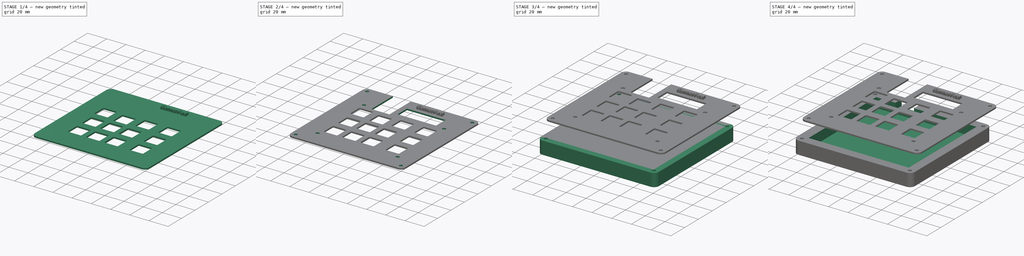
[diagram: build sequence overview — one tinted view per stage of 4, left to right]
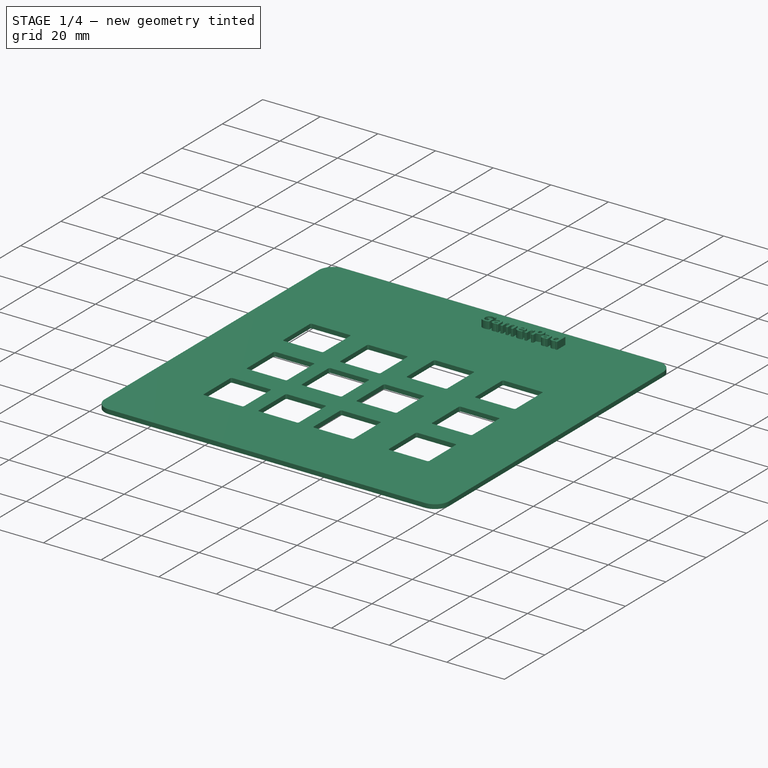
[diagram: stage 1 of 4 — iso view after this stage's code; geometry added in this stage tinted green]
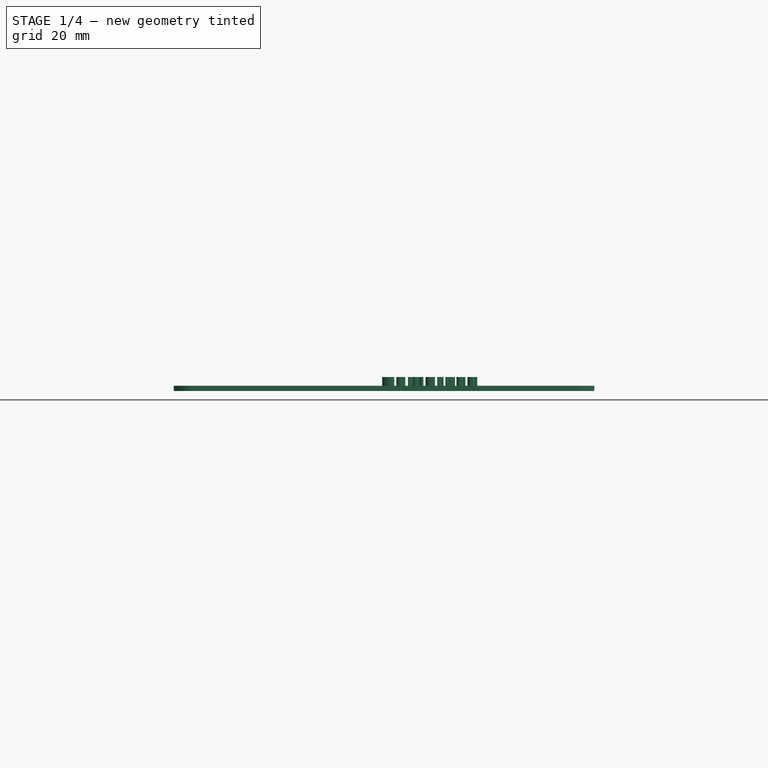
[diagram: stage 1 of 4 — front view after this stage's code; geometry added in this stage tinted green]
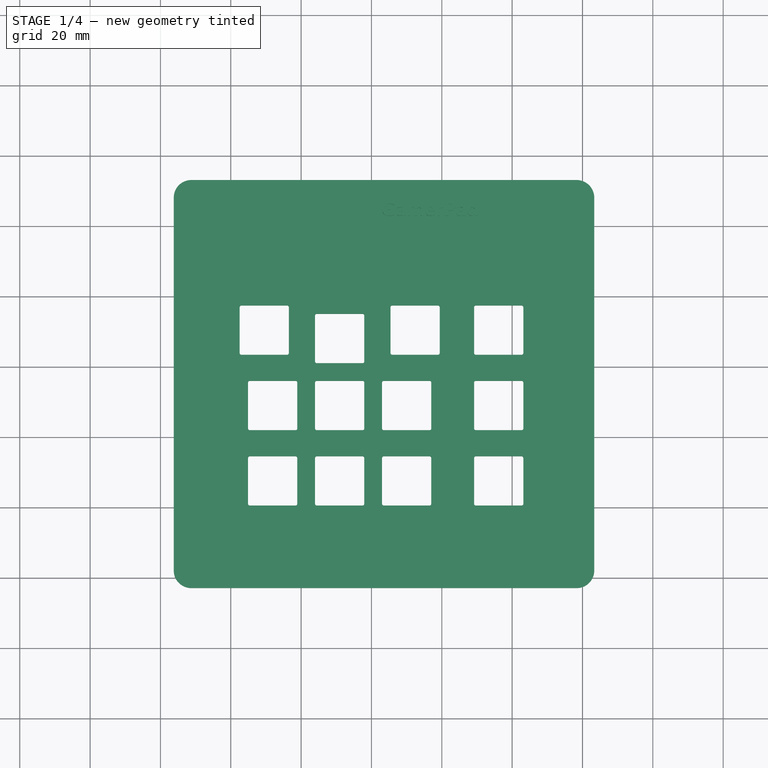
[diagram: stage 1 of 4 — top view after this stage's code; geometry added in this stage tinted green]
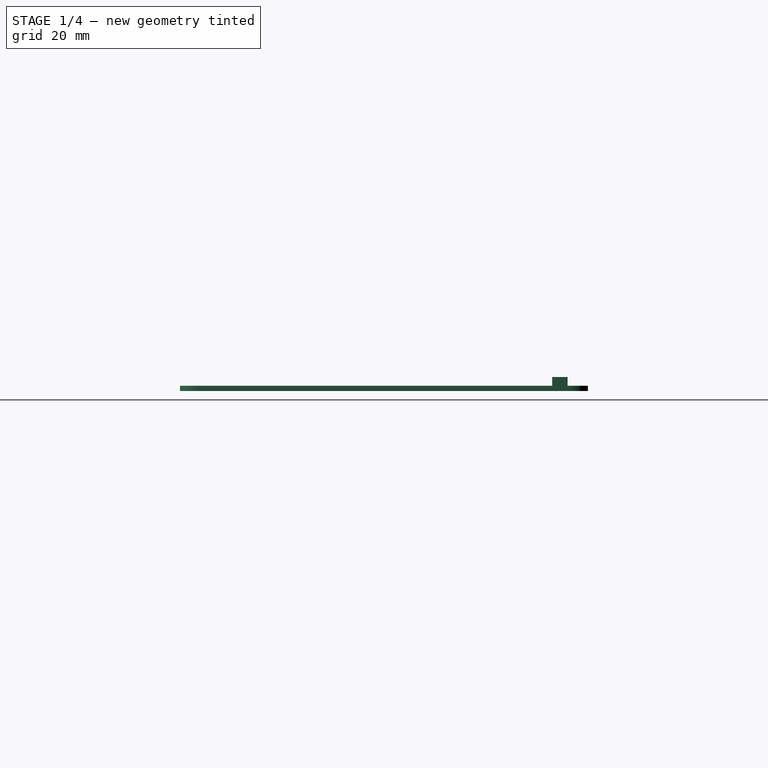
[diagram: stage 1 of 4 — right view after this stage's code; geometry added in this stage tinted green]
FCSTD DOCUMENT  (FreeCAD 1.0R39109 (Git))
Label: GamerPadEntireCase
License: All rights reserved
LicenseURL: https://en.wikipedia.org/wiki/All_rights_reserved
objects: Part::Feature×29, App::Part×29, Sketcher::SketchObject×9, PartDesign::Pocket×5, PartDesign::Pad×2, PartDesign::Body×2, Part::Extrusion×2, Part::Cut×1, Part::MultiFuse×1
note: 74 computed .brp shape members not serialized (recipe doc carries the construction recipe); baked Part::Feature solids carry a one-line shape summary decoded from their .brp

FEATURE [Part::Feature] Part__Feature  label="SW_Cherry_MX_PCB_cp"
  shape: bbox 15.61 x 15.61 x 18.61 mm, 942 faces, 7 solids (baked)
FEATURE [App::Part] MX_PCB
  Group = -> [Part__Feature]
  Origin = -> Origin
  Placement = pos=(-12.5788,-27.5602,1.65) rot=(0,0,1;0rad)
FEATURE [Part::Feature] Part__Feature001  label="1.00u"
  shape: bbox 18.05 x 18.05 x 7 mm, 112 faces (baked)
FEATURE [App::Part] MX_1_00u_CAD  label="MX_1.00u_CAD"
  Group = -> [Part__Feature001]
  Origin = -> Origin044
  Placement = pos=(-12.5788,-27.5602,19.15) rot=(1,0,0;3.14159rad)
FEATURE [Part::Feature] Part__Feature002  label="SW_Cherry_MX_PCB_cp001"
  shape: bbox 15.61 x 15.61 x 18.61 mm, 942 faces, 7 solids (baked)
FEATURE [App::Part] MX_PCB001
  Group = -> [Part__Feature002]
  Origin = -> Origin045
  Placement = pos=(6.47117,-27.5602,1.65) rot=(0,0,1;0rad)
FEATURE [Part::Feature] Part__Feature003  label="1.00u001"
  shape: bbox 18.05 x 18.05 x 7 mm, 112 faces (baked)
FEATURE [App::Part] MX_1_00u_CAD001  label="MX_1.00u_CAD001"
  Group = -> [Part__Feature003]
  Origin = -> Origin046
  Placement = pos=(6.47117,-27.5602,19.15) rot=(1,0,0;3.14159rad)
FEATURE [Part::Feature] Part__Feature004  label="SW_Cherry_MX_PCB_cp002"
  shape: bbox 15.61 x 15.61 x 18.61 mm, 942 faces, 7 solids (baked)
FEATURE [App::Part] MX_PCB002
  Group = -> [Part__Feature004]
  Origin = -> Origin047
  Placement = pos=(32.6649,-27.5602,1.65) rot=(0,0,1;0rad)
FEATURE [Part::Feature] Part__Feature005  label="1.00u002"
  shape: bbox 18.05 x 18.05 x 7 mm, 112 faces (baked)
FEATURE [App::Part] MX_1_00u_CAD002  label="MX_1.00u_CAD002"
  Group = -> [Part__Feature005]
  Origin = -> Origin048
  Placement = pos=(32.6649,-27.5602,19.15) rot=(1,0,0;3.14159rad)
FEATURE [Part::Feature] Part__Feature006  label="SW_Cherry_MX_PCB_cp003"
  shape: bbox 15.61 x 15.61 x 18.61 mm, 942 faces, 7 solids (baked)
FEATURE [App::Part] MX_PCB003
  Group = -> [Part__Feature006]
  Origin = -> Origin049
  Placement = pos=(8.85242,15.3023,1.65) rot=(0,0,1;0rad)
FEATURE [Part::Feature] Part__Feature007  label="1.00u003"
  shape: bbox 18.05 x 18.05 x 7 mm, 112 faces (baked)
FEATURE [App::Part] MX_1_00u_CAD003  label="MX_1.00u_CAD003"
  Group = -> [Part__Feature007]
  Origin = -> Origin050
  Placement = pos=(8.85242,15.3023,19.15) rot=(1,0,0;3.14159rad)
FEATURE [Part::Feature] Part__Feature008  label="Seeed Studio XIAO RP2040 v26"
  shape: bbox 17.5 x 22 x 4.405 mm, 1237 faces, 83 solids (baked)
FEATURE [Part::Feature] Part__Feature009  label="SW_Cherry_MX_PCB_cp004"
  shape: bbox 15.61 x 15.61 x 18.61 mm, 942 faces, 7 solids (baked)
FEATURE [App::Part] MX_PCB004
  Group = -> [Part__Feature009]
  Origin = -> Origin052
  Placement = pos=(6.47117,-6.12894,1.65) rot=(0,0,1;0rad)
FEATURE [Part::Feature] Part__Feature010  label="1.00u004"
  shape: bbox 18.05 x 18.05 x 7 mm, 112 faces (baked)
FEATURE [App::Part] MX_1_00u_CAD004  label="MX_1.00u_CAD004"
  Group = -> [Part__Feature010]
  Origin = -> Origin053
  Placement = pos=(6.47117,-6.12894,19.15) rot=(1,0,0;3.14159rad)
FEATURE [Part::Feature] Part__Feature011  label="OLED_0.91_128x32"
  shape: bbox 38.3 x 12.1 x 11.46 mm, 1137 faces, 52 solids (baked)
FEATURE [App::Part] OLED_128x32
  Group = -> [Part__Feature011]
  Origin = -> Origin054
  Placement = pos=(13.0149,37.2298,4.15) rot=(0,0,1;3.14159rad)
FEATURE [Part::Feature] Part__Feature012  label="R_Axial_DIN0204_L36mm_D16mm_P762mm_Horizontal"
  shape: bbox 8.285 x 1.732 x 4.666 mm, 17 faces (baked)
FEATURE [Part::Feature] Part__Feature013  label="SW_Cherry_MX_PCB_cp005"
  shape: bbox 15.61 x 15.61 x 18.61 mm, 942 faces, 7 solids (baked)
FEATURE [App::Part] MX_PCB005
  Group = -> [Part__Feature013]
  Origin = -> Origin056
  Placement = pos=(-34.0101,15.3023,1.65) rot=(0,0,1;0rad)
FEATURE [Part::Feature] Part__Feature014  label="1.00u005"
  shape: bbox 18.05 x 18.05 x 7 mm, 112 faces (baked)
FEATURE [App::Part] MX_1_00u_CAD005  label="MX_1.00u_CAD005"
  Group = -> [Part__Feature014]
  Origin = -> Origin057
  Placement = pos=(-34.0101,15.3023,19.15) rot=(1,0,0;3.14159rad)
FEATURE [Part::Feature] Part__Feature015  label="SW_Cherry_MX_PCB_cp006"
  shape: bbox 15.61 x 15.61 x 18.61 mm, 942 faces, 7 solids (baked)
FEATURE [App::Part] MX_PCB006
  Group = -> [Part__Feature015]
  Origin = -> Origin058
  Placement = pos=(32.6649,15.3023,1.65) rot=(0,0,1;0rad)
FEATURE [Part::Feature] Part__Feature016  label="1.00u006"
  shape: bbox 18.05 x 18.05 x 7 mm, 112 faces (baked)
FEATURE [App::Part] MX_1_00u_CAD006  label="MX_1.00u_CAD006"
  Group = -> [Part__Feature016]
  Origin = -> Origin059
  Placement = pos=(32.6649,15.3023,19.15) rot=(1,0,0;3.14159rad)
FEATURE [Part::Feature] Part__Feature017  label="SW_Cherry_MX_PCB_cp007"
  shape: bbox 15.61 x 15.61 x 18.61 mm, 942 faces, 7 solids (baked)
FEATURE [App::Part] MX_PCB007
  Group = -> [Part__Feature017]
  Origin = -> Origin060
  Placement = pos=(32.6649,-6.12894,1.65) rot=(0,0,1;0rad)
FEATURE [Part::Feature] Part__Feature018  label="1.00u007"
  shape: bbox 18.05 x 18.05 x 7 mm, 112 faces (baked)
FEATURE [App::Part] MX_1_00u_CAD007  label="MX_1.00u_CAD007"
  Group = -> [Part__Feature018]
  Origin = -> Origin061
  Placement = pos=(32.6649,-6.12894,19.15) rot=(1,0,0;3.14159rad)
FEATURE [Part::Feature] Part__Feature019  label="SW_Cherry_MX_PCB_cp008"
  shape: bbox 15.61 x 15.61 x 18.61 mm, 942 faces, 7 solids (baked)
FEATURE [App::Part] MX_PCB008
  Group = -> [Part__Feature019]
  Origin = -> Origin062
  Placement = pos=(-31.6288,-6.12894,1.65) rot=(0,0,1;0rad)
FEATURE [Part::Feature] Part__Feature020  label="1.00u008"
  shape: bbox 18.05 x 18.05 x 7 mm, 112 faces (baked)
FEATURE [App::Part] MX_1_00u_CAD008  label="MX_1.00u_CAD008"
  Group = -> [Part__Feature020]
  Origin = -> Origin063
  Placement = pos=(-31.6288,-6.12894,19.15) rot=(1,0,0;3.14159rad)
FEATURE [Part::Feature] Part__Feature021  label="R_Axial_DIN0204_L36mm_D16mm_P762mm_Horizontal001"
  shape: bbox 8.285 x 1.732 x 4.666 mm, 17 faces (baked)
FEATURE [Part::Feature] Part__Feature022  label="SW_Cherry_MX_PCB_cp009"
  shape: bbox 15.61 x 15.61 x 18.61 mm, 942 faces, 7 solids (baked)
FEATURE [App::Part] MX_PCB009
  Group = -> [Part__Feature022]
  Origin = -> Origin065
  Placement = pos=(-31.9463,-27.5602,1.65) rot=(0,0,1;0rad)
FEATURE [Part::Feature] Part__Feature023  label="1.00u009"
  shape: bbox 18.05 x 18.05 x 7 mm, 112 faces (baked)
FEATURE [App::Part] MX_1_00u_CAD009  label="MX_1.00u_CAD009"
  Group = -> [Part__Feature023]
  Origin = -> Origin066
  Placement = pos=(-31.9463,-27.5602,19.15) rot=(1,0,0;3.14159rad)
FEATURE [Part::Feature] Part__Feature024  label="SW_Cherry_MX_PCB_cp010"
  shape: bbox 15.61 x 15.61 x 18.61 mm, 942 faces, 7 solids (baked)
FEATURE [App::Part] MX_PCB010
  Group = -> [Part__Feature024]
  Origin = -> Origin067
  Placement = pos=(-12.5788,12.9211,1.65) rot=(0,0,1;0rad)
FEATURE [Part::Feature] Part__Feature025  label="1.00u010"
  shape: bbox 18.05 x 18.05 x 7 mm, 112 faces (baked)
FEATURE [App::Part] MX_1_00u_CAD010  label="MX_1.00u_CAD010"
  Group = -> [Part__Feature025]
  Origin = -> Origin068
  Placement = pos=(-12.5788,12.9211,19.15) rot=(1,0,0;3.14159rad)
FEATURE [Part::Feature] Part__Feature026  label="SW_Cherry_MX_PCB_cp011"
  shape: bbox 15.61 x 15.61 x 18.61 mm, 942 faces, 7 solids (baked)
FEATURE [App::Part] MX_PCB011
  Group = -> [Part__Feature026]
  Origin = -> Origin069
  Placement = pos=(-12.5788,-6.12894,1.65) rot=(0,0,1;0rad)
FEATURE [Part::Feature] Part__Feature027  label="1.00u011"
  shape: bbox 18.05 x 18.05 x 7 mm, 112 faces (baked)
FEATURE [App::Part] MX_1_00u_CAD011  label="MX_1.00u_CAD011"
  Group = -> [Part__Feature027]
  Origin = -> Origin070
  Placement = pos=(-12.5788,-6.12894,19.15) rot=(1,0,0;3.14159rad)
FEATURE [Part::Feature] Part__Feature028  label="gamerpad_PCB"
  shape: bbox 99.56 x 96.03 x 1.6 mm, 132 faces (baked)
FEATURE [App::Part] R_Axial_DIN0204_L3_6mm_D1_6mm_P7_62mm_Horizontal  label="R_Axial_DIN0204_L3.6mm_D1.6mm_P7.62mm_Horizontal"
  Group = -> [Part__Feature012]
  Origin = -> Origin055
  Placement = pos=(34.0175,33.4094,1.65) rot=(0,0,-1;1.5708rad)
FEATURE [App::Part] R_Axial_DIN0204_L3_6mm_D1_6mm_P7_62mm_Horizontal001  label="R_Axial_DIN0204_L3.6mm_D1.6mm_P7.62mm_Horizontal001"
  Group = -> [Part__Feature021]
  Origin = -> Origin064
  Placement = pos=(36.3987,35.7907,1.65) rot=(0,0,-1;1.5708rad)
FEATURE [App::Part] Seeed_Studio_XIAO_RP2040_v26  label="Seeed Studio XIAO RP2040 v027"
  Group = -> [Part__Feature008]
  Origin = -> Origin051
  Placement = pos=(-21.9726,37.3023,1.65) rot=(0,0,1;0rad)
FEATURE [Sketcher::SketchObject] Sketch004
  ArcFitTolerance = 1e-06
  FullyConstrained = false
  MakeInternals = false
  sketch-geometry (96):
    g0: LineSegment StartX=3.025 StartY=-2.525 StartZ=0 EndX=16.025 EndY=-2.525 EndZ=0
    g1: LineSegment StartX=3.025 StartY=-16.525 StartZ=0 EndX=16.025 EndY=-16.525 EndZ=0
    g2: LineSegment StartX=2.525 StartY=-3.025 StartZ=0 EndX=2.525 EndY=-16.025 EndZ=0
    g3: LineSegment StartX=16.525 StartY=-3.025 StartZ=0 EndX=16.525 EndY=-16.025 EndZ=0
    g4: ArcOfCircle CenterX=3.025 CenterY=-3.025 CenterZ=0 NormalX=0 NormalY=0 NormalZ=1 AngleXU=0 Radius=0.5 StartAngle=1.5708 EndAngle=3.14159
    g5: ArcOfCircle CenterX=16.025 CenterY=-3.025 CenterZ=0 NormalX=0 NormalY=0 NormalZ=1 AngleXU=0 Radius=0.5 StartAngle=0 EndAngle=1.5708
    g6: ArcOfCircle CenterX=3.025 CenterY=-16.025 CenterZ=0 NormalX=0 NormalY=0 NormalZ=1 AngleXU=0 Radius=0.5 StartAngle=3.14159 EndAngle=4.71239
    g7: ArcOfCircle CenterX=16.025 CenterY=-16.025 CenterZ=0 NormalX=0 NormalY=0 NormalZ=1 AngleXU=0 Radius=0.5 StartAngle=4.71239 EndAngle=6.28319
    g8: LineSegment StartX=45.8989 StartY=-2.525 StartZ=0 EndX=58.8989 EndY=-2.525 EndZ=0
    g9: LineSegment StartX=45.8989 StartY=-16.525 StartZ=0 EndX=58.8989 EndY=-16.525 EndZ=0
    g10: LineSegment StartX=45.3989 StartY=-3.025 StartZ=0 EndX=45.3989 EndY=-16.025 EndZ=0
    g11: LineSegment StartX=59.3989 StartY=-3.025 StartZ=0 EndX=59.3989 EndY=-16.025 EndZ=0
    g12: ArcOfCircle CenterX=45.8989 CenterY=-3.025 CenterZ=0 NormalX=0 NormalY=0 NormalZ=1 AngleXU=0 Radius=0.5 StartAngle=1.5708 EndAngle=3.14159
    g13: ArcOfCircle CenterX=58.8989 CenterY=-3.025 CenterZ=0 NormalX=0 NormalY=0 NormalZ=1 AngleXU=0 Radius=0.5 StartAngle=0 EndAngle=1.5708
    g14: ArcOfCircle CenterX=45.8989 CenterY=-16.025 CenterZ=0 NormalX=0 NormalY=0 NormalZ=1 AngleXU=0 Radius=0.5 StartAngle=3.14159 EndAngle=4.71239
    g15: ArcOfCircle CenterX=58.8989 CenterY=-16.025 CenterZ=0 NormalX=0 NormalY=0 NormalZ=1 AngleXU=0 Radius=0.5 StartAngle=4.71239 EndAngle=6.28319
    g16: LineSegment StartX=69.679 StartY=-2.525 StartZ=0 EndX=82.679 EndY=-2.525 EndZ=0
    g17: LineSegment StartX=69.679 StartY=-16.525 StartZ=0 EndX=82.679 EndY=-16.525 EndZ=0
    g18: LineSegment StartX=69.179 StartY=-3.025 StartZ=0 EndX=69.179 EndY=-16.025 EndZ=0
    g19: LineSegment StartX=83.179 StartY=-3.025 StartZ=0 EndX=83.179 EndY=-16.025 EndZ=0
    g20: ArcOfCircle CenterX=69.679 CenterY=-3.025 CenterZ=0 NormalX=0 NormalY=0 NormalZ=1 AngleXU=0 Radius=0.5 StartAngle=1.5708 EndAngle=3.14159
    g21: ArcOfCircle CenterX=82.679 CenterY=-3.025 CenterZ=0 NormalX=0 NormalY=0 NormalZ=1 AngleXU=0 Radius=0.5 StartAngle=0 EndAngle=1.5708
    g22: ArcOfCircle CenterX=69.679 CenterY=-16.025 CenterZ=0 NormalX=0 NormalY=0 NormalZ=1 AngleXU=0 Radius=0.5 StartAngle=3.14159 EndAngle=4.71239
    g23: ArcOfCircle CenterX=82.679 CenterY=-16.025 CenterZ=0 NormalX=0 NormalY=0 NormalZ=1 AngleXU=0 Radius=0.5 StartAngle=4.71239 EndAngle=6.28319
    g24: LineSegment StartX=24.462 StartY=-4.91197 StartZ=0 EndX=37.462 EndY=-4.91197 EndZ=0
    g25: LineSegment StartX=24.462 StartY=-18.912 StartZ=0 EndX=37.462 EndY=-18.912 EndZ=0
    g26: LineSegment StartX=23.962 StartY=-5.41197 StartZ=0 EndX=23.962 EndY=-18.412 EndZ=0
    g27: LineSegment StartX=37.962 StartY=-5.41197 StartZ=0 EndX=37.962 EndY=-18.412 EndZ=0
    g28: ArcOfCircle CenterX=24.462 CenterY=-5.41197 CenterZ=0 NormalX=0 NormalY=0 NormalZ=1 AngleXU=0 Radius=0.5 StartAngle=1.5708 EndAngle=3.14159
    g29: ArcOfCircle CenterX=37.462 CenterY=-5.41197 CenterZ=0 NormalX=0 NormalY=0 NormalZ=1 AngleXU=0 Radius=0.5 StartAngle=0 EndAngle=1.5708
    g30: ArcOfCircle CenterX=24.462 CenterY=-18.412 CenterZ=0 NormalX=0 NormalY=0 NormalZ=1 AngleXU=0 Radius=0.5 StartAngle=3.14159 EndAngle=4.71239
    g31: ArcOfCircle CenterX=37.462 CenterY=-18.412 CenterZ=0 NormalX=0 NormalY=0 NormalZ=1 AngleXU=0 Radius=0.5 StartAngle=4.71239 EndAngle=6.28319
    g32: LineSegment StartX=5.41197 StartY=-23.962 StartZ=0 EndX=18.412 EndY=-23.962 EndZ=0
    g33: LineSegment StartX=5.41197 StartY=-37.962 StartZ=0 EndX=18.412 EndY=-37.962 EndZ=0
    g34: LineSegment StartX=4.91197 StartY=-24.462 StartZ=0 EndX=4.91197 EndY=-37.462 EndZ=0
    g35: LineSegment StartX=18.912 StartY=-24.462 StartZ=0 EndX=18.912 EndY=-37.462 EndZ=0
    g36: ArcOfCircle CenterX=5.41197 CenterY=-24.462 CenterZ=0 NormalX=0 NormalY=0 NormalZ=1 AngleXU=0 Radius=0.5 StartAngle=1.5708 EndAngle=3.14159
    g37: ArcOfCircle CenterX=18.412 CenterY=-24.462 CenterZ=0 NormalX=0 NormalY=0 NormalZ=1 AngleXU=0 Radius=0.5 StartAngle=0 EndAngle=1.5708
    g38: ArcOfCircle CenterX=5.41197 CenterY=-37.462 CenterZ=0 NormalX=0 NormalY=0 NormalZ=1 AngleXU=0 Radius=0.5 StartAngle=3.14159 EndAngle=4.71239
    g39: ArcOfCircle CenterX=18.412 CenterY=-37.462 CenterZ=0 NormalX=0 NormalY=0 NormalZ=1 AngleXU=0 Radius=0.5 StartAngle=4.71239 EndAngle=6.28319
    g40: LineSegment StartX=24.462 StartY=-23.962 StartZ=0 EndX=37.462 EndY=-23.962 EndZ=0
    g41: LineSegment StartX=24.462 StartY=-37.962 StartZ=0 EndX=37.462 EndY=-37.962 EndZ=0
    g42: LineSegment StartX=23.962 StartY=-24.462 StartZ=0 EndX=23.962 EndY=-37.462 EndZ=0
    g43: LineSegment StartX=37.962 StartY=-24.462 StartZ=0 EndX=37.962 EndY=-37.462 EndZ=0
    g44: ArcOfCircle CenterX=24.462 CenterY=-24.462 CenterZ=0 NormalX=0 NormalY=0 NormalZ=1 AngleXU=0 Radius=0.5 StartAngle=1.5708 EndAngle=3.14159
    g45: ArcOfCircle CenterX=37.462 CenterY=-24.462 CenterZ=0 NormalX=0 NormalY=0 NormalZ=1 AngleXU=0 Radius=0.5 StartAngle=0 EndAngle=1.5708
    g46: ArcOfCircle CenterX=24.462 CenterY=-37.462 CenterZ=0 NormalX=0 NormalY=0 NormalZ=1 AngleXU=0 Radius=0.5 StartAngle=3.14159 EndAngle=4.71239
    g47: ArcOfCircle CenterX=37.462 CenterY=-37.462 CenterZ=0 NormalX=0 NormalY=0 NormalZ=1 AngleXU=0 Radius=0.5 StartAngle=4.71239 EndAngle=6.28319
    g48: LineSegment StartX=43.512 StartY=-23.962 StartZ=0 EndX=56.512 EndY=-23.962 EndZ=0
    g49: LineSegment StartX=43.512 StartY=-37.962 StartZ=0 EndX=56.512 EndY=-37.962 EndZ=0
    g50: LineSegment StartX=43.012 StartY=-24.462 StartZ=0 EndX=43.012 EndY=-37.462 EndZ=0
    g51: LineSegment StartX=57.012 StartY=-24.462 StartZ=0 EndX=57.012 EndY=-37.462 EndZ=0
    g52: ArcOfCircle CenterX=43.512 CenterY=-24.462 CenterZ=0 NormalX=0 NormalY=0 NormalZ=1 AngleXU=0 Radius=0.5 StartAngle=1.5708 EndAngle=3.14159
    g53: ArcOfCircle CenterX=56.512 CenterY=-24.462 CenterZ=0 NormalX=0 NormalY=0 NormalZ=1 AngleXU=0 Radius=0.5 StartAngle=0 EndAngle=1.5708
    g54: ArcOfCircle CenterX=43.512 CenterY=-37.462 CenterZ=0 NormalX=0 NormalY=0 NormalZ=1 AngleXU=0 Radius=0.5 StartAngle=3.14159 EndAngle=4.71239
    g55: ArcOfCircle CenterX=56.512 CenterY=-37.462 CenterZ=0 NormalX=0 NormalY=0 NormalZ=1 AngleXU=0 Radius=0.5 StartAngle=4.71239 EndAngle=6.28319
    g56: LineSegment StartX=69.679 StartY=-23.962 StartZ=0 EndX=82.679 EndY=-23.962 EndZ=0
    g57: LineSegment StartX=69.679 StartY=-37.962 StartZ=0 EndX=82.679 EndY=-37.962 EndZ=0
    g58: LineSegment StartX=69.179 StartY=-24.462 StartZ=0 EndX=69.179 EndY=-37.462 EndZ=0
    g59: LineSegment StartX=83.179 StartY=-24.462 StartZ=0 EndX=83.179 EndY=-37.462 EndZ=0
    g60: ArcOfCircle CenterX=69.679 CenterY=-24.462 CenterZ=0 NormalX=0 NormalY=0 NormalZ=1 AngleXU=0 Radius=0.5 StartAngle=1.5708 EndAngle=3.14159
    g61: ArcOfCircle CenterX=82.679 CenterY=-24.462 CenterZ=0 NormalX=0 NormalY=0 NormalZ=1 AngleXU=0 Radius=0.5 StartAngle=0 EndAngle=1.5708
    g62: ArcOfCircle CenterX=69.679 CenterY=-37.462 CenterZ=0 NormalX=0 NormalY=0 NormalZ=1 AngleXU=0 Radius=0.5 StartAngle=3.14159 EndAngle=4.71239
    g63: ArcOfCircle CenterX=82.679 CenterY=-37.462 CenterZ=0 NormalX=0 NormalY=0 NormalZ=1 AngleXU=0 Radius=0.5 StartAngle=4.71239 EndAngle=6.28319
    g64: LineSegment StartX=5.41197 StartY=-45.3989 StartZ=0 EndX=18.412 EndY=-45.3989 EndZ=0
    g65: LineSegment StartX=5.41197 StartY=-59.3989 StartZ=0 EndX=18.412 EndY=-59.3989 EndZ=0
    g66: LineSegment StartX=4.91197 StartY=-45.8989 StartZ=0 EndX=4.91197 EndY=-58.8989 EndZ=0
    g67: LineSegment StartX=18.912 StartY=-45.8989 StartZ=0 EndX=18.912 EndY=-58.8989 EndZ=0
    g68: ArcOfCircle CenterX=5.41197 CenterY=-45.8989 CenterZ=0 NormalX=0 NormalY=0 NormalZ=1 AngleXU=0 Radius=0.5 StartAngle=1.5708 EndAngle=3.14159
    g69: ArcOfCircle CenterX=18.412 CenterY=-45.8989 CenterZ=0 NormalX=0 NormalY=0 NormalZ=1 AngleXU=0 Radius=0.5 StartAngle=0 EndAngle=1.5708
    g70: ArcOfCircle CenterX=5.41197 CenterY=-58.8989 CenterZ=0 NormalX=0 NormalY=0 NormalZ=1 AngleXU=0 Radius=0.5 StartAngle=3.14159 EndAngle=4.71239
    g71: ArcOfCircle CenterX=18.412 CenterY=-58.8989 CenterZ=0 NormalX=0 NormalY=0 NormalZ=1 AngleXU=0 Radius=0.5 StartAngle=4.71239 EndAngle=6.28319
    g72: LineSegment StartX=24.462 StartY=-45.3989 StartZ=0 EndX=37.462 EndY=-45.3989 EndZ=0
    g73: LineSegment StartX=24.462 StartY=-59.3989 StartZ=0 EndX=37.462 EndY=-59.3989 EndZ=0
    g74: LineSegment StartX=23.962 StartY=-45.8989 StartZ=0 EndX=23.962 EndY=-58.8989 EndZ=0
    g75: LineSegment StartX=37.962 StartY=-45.8989 StartZ=0 EndX=37.962 EndY=-58.8989 EndZ=0
    g76: ArcOfCircle CenterX=24.462 CenterY=-45.8989 CenterZ=0 NormalX=0 NormalY=0 NormalZ=1 AngleXU=0 Radius=0.5 StartAngle=1.5708 EndAngle=3.14159
    g77: ArcOfCircle CenterX=37.462 CenterY=-45.8989 CenterZ=0 NormalX=0 NormalY=0 NormalZ=1 AngleXU=0 Radius=0.5 StartAngle=0 EndAngle=1.5708
    g78: ArcOfCircle CenterX=24.462 CenterY=-58.8989 CenterZ=0 NormalX=0 NormalY=0 NormalZ=1 AngleXU=0 Radius=0.5 StartAngle=3.14159 EndAngle=4.71239
    g79: ArcOfCircle CenterX=37.462 CenterY=-58.8989 CenterZ=0 NormalX=0 NormalY=0 NormalZ=1 AngleXU=0 Radius=0.5 StartAngle=4.71239 EndAngle=6.28319
    g80: LineSegment StartX=43.512 StartY=-45.3989 StartZ=0 EndX=56.512 EndY=-45.3989 EndZ=0
    g81: LineSegment StartX=43.512 StartY=-59.3989 StartZ=0 EndX=56.512 EndY=-59.3989 EndZ=0
    g82: LineSegment StartX=43.012 StartY=-45.8989 StartZ=0 EndX=43.012 EndY=-58.8989 EndZ=0
    g83: LineSegment StartX=57.012 StartY=-45.8989 StartZ=0 EndX=57.012 EndY=-58.8989 EndZ=0
    g84: ArcOfCircle CenterX=43.512 CenterY=-45.8989 CenterZ=0 NormalX=0 NormalY=0 NormalZ=1 AngleXU=0 Radius=0.5 StartAngle=1.5708 EndAngle=3.14159
    g85: ArcOfCircle CenterX=56.512 CenterY=-45.8989 CenterZ=0 NormalX=0 NormalY=0 NormalZ=1 AngleXU=0 Radius=0.5 StartAngle=0 EndAngle=1.5708
    g86: ArcOfCircle CenterX=43.512 CenterY=-58.8989 CenterZ=0 NormalX=0 NormalY=0 NormalZ=1 AngleXU=0 Radius=0.5 StartAngle=3.14159 EndAngle=4.71239
    g87: ArcOfCircle CenterX=56.512 CenterY=-58.8989 CenterZ=0 NormalX=0 NormalY=0 NormalZ=1 AngleXU=0 Radius=0.5 StartAngle=4.71239 EndAngle=6.28319
    g88: LineSegment StartX=69.679 StartY=-45.3989 StartZ=0 EndX=82.679 EndY=-45.3989 EndZ=0
    g89: LineSegment StartX=69.679 StartY=-59.3989 StartZ=0 EndX=82.679 EndY=-59.3989 EndZ=0
    g90: LineSegment StartX=69.179 StartY=-45.8989 StartZ=0 EndX=69.179 EndY=-58.8989 EndZ=0
    g91: LineSegment StartX=83.179 StartY=-45.8989 StartZ=0 EndX=83.179 EndY=-58.8989 EndZ=0
    g92: ArcOfCircle CenterX=69.679 CenterY=-45.8989 CenterZ=0 NormalX=0 NormalY=0 NormalZ=1 AngleXU=0 Radius=0.5 StartAngle=1.5708 EndAngle=3.14159
    g93: ArcOfCircle CenterX=82.679 CenterY=-45.8989 CenterZ=0 NormalX=0 NormalY=0 NormalZ=1 AngleXU=0 Radius=0.5 StartAngle=0 EndAngle=1.5708
    g94: ArcOfCircle CenterX=69.679 CenterY=-58.8989 CenterZ=0 NormalX=0 NormalY=0 NormalZ=1 AngleXU=0 Radius=0.5 StartAngle=3.14159 EndAngle=4.71239
    g95: ArcOfCircle CenterX=82.679 CenterY=-58.8989 CenterZ=0 NormalX=0 NormalY=0 NormalZ=1 AngleXU=0 Radius=0.5 StartAngle=4.71239 EndAngle=6.28319
  constraints (96):
    c: Coincident(g2,g6)
    c: Coincident(g2,g4)
    c: Coincident(g1,g6)
    c: Coincident(g0,g4)
    c: Coincident(g66,g70)
    c: Coincident(g66,g68)
    c: Coincident(g34,g38)
    c: Coincident(g34,g36)
    c: Coincident(g65,g70)
    c: Coincident(g64,g68)
    c: Coincident(g33,g38)
    c: Coincident(g32,g36)
    c: Coincident(g1,g7)
    c: Coincident(g0,g5)
    c: Coincident(g3,g7)
    c: Coincident(g3,g5)
    c: Coincident(g65,g71)
    c: Coincident(g64,g69)
    c: Coincident(g33,g39)
    c: Coincident(g32,g37)
    c: Coincident(g67,g71)
    c: Coincident(g67,g69)
    c: Coincident(g35,g39)
    c: Coincident(g35,g37)
    c: Coincident(g74,g78)
    c: Coincident(g74,g76)
    c: Coincident(g42,g46)
    c: Coincident(g42,g44)
    c: Coincident(g26,g30)
    c: Coincident(g26,g28)
    c: Coincident(g73,g78)
    c: Coincident(g72,g76)
    c: Coincident(g41,g46)
    c: Coincident(g40,g44)
    c: Coincident(g25,g30)
    c: Coincident(g24,g28)
    c: Coincident(g73,g79)
    c: Coincident(g72,g77)
    c: Coincident(g41,g47)
    c: Coincident(g40,g45)
    c: Coincident(g25,g31)
    c: Coincident(g24,g29)
    c: Coincident(g75,g79)
    c: Coincident(g75,g77)
    c: Coincident(g43,g47)
    c: Coincident(g43,g45)
    c: Coincident(g27,g31)
    c: Coincident(g27,g29)
    c: Coincident(g82,g86)
    c: Coincident(g82,g84)
    c: Coincident(g50,g54)
    c: Coincident(g50,g52)
    c: Coincident(g81,g86)
    c: Coincident(g80,g84)
    c: Coincident(g49,g54)
    c: Coincident(g48,g52)
    c: Coincident(g10,g14)
    c: Coincident(g10,g12)
    c: Coincident(g9,g14)
    c: Coincident(g8,g12)
    c: Coincident(g81,g87)
    c: Coincident(g80,g85)
    c: Coincident(g49,g55)
    c: Coincident(g48,g53)
    c: Coincident(g83,g87)
    c: Coincident(g83,g85)
    c: Coincident(g51,g55)
    c: Coincident(g51,g53)
    c: Coincident(g9,g15)
    c: Coincident(g8,g13)
    c: Coincident(g11,g15)
    c: Coincident(g11,g13)
    c: Coincident(g90,g94)
    c: Coincident(g90,g92)
    c: Coincident(g58,g62)
    c: Coincident(g58,g60)
    c: Coincident(g18,g22)
    c: Coincident(g18,g20)
    c: Coincident(g89,g94)
    c: Coincident(g88,g92)
    c: Coincident(g57,g62)
    c: Coincident(g56,g60)
    c: Coincident(g17,g22)
    c: Coincident(g16,g20)
    c: Coincident(g89,g95)
    c: Coincident(g88,g93)
    c: Coincident(g57,g63)
    c: Coincident(g56,g61)
    c: Coincident(g17,g23)
    c: Coincident(g16,g21)
    c: Coincident(g91,g95)
    c: Coincident(g91,g93)
    c: Coincident(g59,g63)
    c: Coincident(g59,g61)
    c: Coincident(g19,g23)
    c: Coincident(g19,g21)
FEATURE [Sketcher::SketchObject] Sketch005
  ArcFitTolerance = 1e-06
  AttachmentSupport = -> [XY_Plane043]
  ExternalGeometry = -> [Sketch004]
  FullyConstrained = true
  MakeInternals = false
  MapMode = 5
  sketch-geometry (10):
    g0: LineSegment StartX=-16.215 StartY=28.165 StartZ=0 EndX=-16.215 EndY=-77.865 EndZ=0
    g1: LineSegment StartX=-11.215 StartY=-82.865 StartZ=0 EndX=98.345 EndY=-82.865 EndZ=0
    g2: LineSegment StartX=103.345 StartY=-77.865 StartZ=0 EndX=103.345 EndY=28.165 EndZ=0
    g3: LineSegment StartX=98.345 StartY=33.165 StartZ=0 EndX=-11.215 EndY=33.165 EndZ=0
    g4: ArcOfCircle CenterX=-11.215 CenterY=28.165 CenterZ=0 NormalX=0 NormalY=0 NormalZ=1 AngleXU=0 Radius=5 StartAngle=1.5708 EndAngle=3.14159
    g5: ArcOfCircle CenterX=-11.215 CenterY=-77.865 CenterZ=0 NormalX=0 NormalY=0 NormalZ=1 AngleXU=0 Radius=5 StartAngle=3.14159 EndAngle=4.71239
    g6: ArcOfCircle CenterX=98.345 CenterY=-77.865 CenterZ=0 NormalX=0 NormalY=0 NormalZ=1 AngleXU=0 Radius=5 StartAngle=4.71239 EndAngle=6.28319
    g7: ArcOfCircle CenterX=98.345 CenterY=28.165 CenterZ=0 NormalX=0 NormalY=0 NormalZ=1 AngleXU=0 Radius=5 StartAngle=4e-16 EndAngle=1.5708
    g8: GeomPoint [constr] X=-16.215 Y=33.165 Z=0
    g9: GeomPoint [constr] X=103.345 Y=-82.865 Z=0
  constraints (24):
    c: Tangent(g0,g4) = -1.5708
    c: Tangent(g0,g5) = -1.5708
    c: Tangent(g1,g5) = -1.5708
    c: Tangent(g1,g6) = -1.5708
    c: Tangent(g2,g6) = -1.5708
    c: Tangent(g2,g7) = -1.5708
    c: Tangent(g3,g7) = -1.5708
    c: Tangent(g3,g4) = -1.5708
    c: Vertical(g0)
    c: Vertical(g2)
    c: Horizontal(g1)
    c: Horizontal(g3)
    c: Equal(g4,g5)
    c: Equal(g5,g6)
    c: Equal(g6,g7)
    c: PointOnObject(g8,g0)
    c: PointOnObject(g8,g3)
    c: PointOnObject(g9,g1)
    c: PointOnObject(g9,g2)
    c: Distance(g0,g2) = 119.56
    c: Distance(g1,g3) = 116.03
    c: Radius(g5) = 5
    c: Distance(g-3,g3) = 35.69
    c: Distance(g-4,g0) = 18.74
FEATURE [PartDesign::Pad] Pad001
  Direction = (0,0,1)
  Length = 1.5
  Length2 = 10
  Profile = -> Sketch005
  ReferenceAxis = -> Sketch005 [N_Axis]
  Refine = true
  Suppressed = false
  Type = 0
FEATURE [PartDesign::Pocket] Pocket003
  BaseFeature = -> Pad001
  Direction = (0,0,-1)
  Length = 0
  Length2 = 5
  Profile = -> Sketch004
  ReferenceAxis = -> Sketch004 [N_Axis]
  Refine = true
  Suppressed = false
  Type = 3
  UpToFace = -> Pad001 [Face10]
FEATURE [PartDesign::Body] Body001  label="BottomPart"
  AllowCompound = false
  Group = -> [Sketch,Pad,Sketch001,Pocket,Sketch002,Pocket001,Sketch003,Pocket002]
  Origin = -> Origin072
  Placement = pos=(-16.22,33.17,0) rot=(0,0,1;0rad)
  Tip = -> Pocket002
FEATURE [Sketcher::SketchObject] Sketch008
  ArcFitTolerance = 1e-06
  FullyConstrained = false
  MakeInternals = false
  sketch-geometry (388):
    g0: BSplineCurve PolesCount=3 KnotsCount=2 Degree=2 IsPeriodic=0
    g1: BSplineCurve PolesCount=3 KnotsCount=2 Degree=2 IsPeriodic=0
    g2: BSplineCurve PolesCount=3 KnotsCount=2 Degree=2 IsPeriodic=0
    g3: BSplineCurve PolesCount=3 KnotsCount=2 Degree=2 IsPeriodic=0
    g4: BSplineCurve PolesCount=3 KnotsCount=2 Degree=2 IsPeriodic=0
    g5: BSplineCurve PolesCount=3 KnotsCount=2 Degree=2 IsPeriodic=0
    g6: BSplineCurve PolesCount=3 KnotsCount=2 Degree=2 IsPeriodic=0
    g7: BSplineCurve PolesCount=3 KnotsCount=2 Degree=2 IsPeriodic=0
    g8: BSplineCurve PolesCount=3 KnotsCount=2 Degree=2 IsPeriodic=0
    g9: BSplineCurve PolesCount=3 KnotsCount=2 Degree=2 IsPeriodic=0
    g10: BSplineCurve PolesCount=3 KnotsCount=2 Degree=2 IsPeriodic=0
    g11: BSplineCurve PolesCount=3 KnotsCount=2 Degree=2 IsPeriodic=0
    g12: BSplineCurve PolesCount=3 KnotsCount=2 Degree=2 IsPeriodic=0
    g13: BSplineCurve PolesCount=3 KnotsCount=2 Degree=2 IsPeriodic=0
    g14: BSplineCurve PolesCount=3 KnotsCount=2 Degree=2 IsPeriodic=0
    g15: BSplineCurve PolesCount=3 KnotsCount=2 Degree=2 IsPeriodic=0
    g16: BSplineCurve PolesCount=3 KnotsCount=2 Degree=2 IsPeriodic=0
    g17: BSplineCurve PolesCount=3 KnotsCount=2 Degree=2 IsPeriodic=0
    g18: BSplineCurve PolesCount=3 KnotsCount=2 Degree=2 IsPeriodic=0
    g19: BSplineCurve PolesCount=3 KnotsCount=2 Degree=2 IsPeriodic=0
    g20: BSplineCurve PolesCount=3 KnotsCount=2 Degree=2 IsPeriodic=0
    g21: LineSegment StartX=5.02275 StartY=-70.3782 StartZ=0 EndX=5.02275 EndY=-71.9659 EndZ=0
    g22: BSplineCurve PolesCount=3 KnotsCount=2 Degree=2 IsPeriodic=0
    g23: BSplineCurve PolesCount=3 KnotsCount=2 Degree=2 IsPeriodic=0
    g24: BSplineCurve PolesCount=3 KnotsCount=2 Degree=2 IsPeriodic=0
    g25: BSplineCurve PolesCount=3 KnotsCount=2 Degree=2 IsPeriodic=0
    g26: LineSegment StartX=3.45406 StartY=-70.1194 StartZ=0 EndX=4.80616 EndY=-70.1194 EndZ=0
    g27: BSplineCurve PolesCount=3 KnotsCount=2 Degree=2 IsPeriodic=0
    g28: BSplineCurve PolesCount=3 KnotsCount=2 Degree=2 IsPeriodic=0
    g29: BSplineCurve PolesCount=3 KnotsCount=2 Degree=2 IsPeriodic=0
    g30: BSplineCurve PolesCount=3 KnotsCount=2 Degree=2 IsPeriodic=0
    g31: BSplineCurve PolesCount=3 KnotsCount=2 Degree=2 IsPeriodic=0
    g32: BSplineCurve PolesCount=3 KnotsCount=2 Degree=2 IsPeriodic=0
    g33: LineSegment StartX=4.2121 StartY=-70.7398 StartZ=0 EndX=3.45406 EndY=-70.7398 EndZ=0
    g34: LineSegment StartX=4.2121 StartY=-71.66 StartZ=0 EndX=4.2121 EndY=-70.7398 EndZ=0
    g35: BSplineCurve PolesCount=3 KnotsCount=2 Degree=2 IsPeriodic=0
    g36: BSplineCurve PolesCount=3 KnotsCount=2 Degree=2 IsPeriodic=0
    g37: BSplineCurve PolesCount=3 KnotsCount=2 Degree=2 IsPeriodic=0
    g38: BSplineCurve PolesCount=3 KnotsCount=2 Degree=2 IsPeriodic=0
    g39: BSplineCurve PolesCount=3 KnotsCount=2 Degree=2 IsPeriodic=0
    g40: BSplineCurve PolesCount=3 KnotsCount=2 Degree=2 IsPeriodic=0
    g41: BSplineCurve PolesCount=3 KnotsCount=2 Degree=2 IsPeriodic=0
    g42: BSplineCurve PolesCount=3 KnotsCount=2 Degree=2 IsPeriodic=0
    g43: BSplineCurve PolesCount=3 KnotsCount=2 Degree=2 IsPeriodic=0
    g44: BSplineCurve PolesCount=3 KnotsCount=2 Degree=2 IsPeriodic=0
    g45: BSplineCurve PolesCount=3 KnotsCount=2 Degree=2 IsPeriodic=0
    g46: BSplineCurve PolesCount=3 KnotsCount=2 Degree=2 IsPeriodic=0
    g47: BSplineCurve PolesCount=3 KnotsCount=2 Degree=2 IsPeriodic=0
    g48: BSplineCurve PolesCount=3 KnotsCount=2 Degree=2 IsPeriodic=0
    g49: BSplineCurve PolesCount=3 KnotsCount=2 Degree=2 IsPeriodic=0
    g50: BSplineCurve PolesCount=3 KnotsCount=2 Degree=2 IsPeriodic=0
    g51: BSplineCurve PolesCount=3 KnotsCount=2 Degree=2 IsPeriodic=0
    g52: BSplineCurve PolesCount=3 KnotsCount=2 Degree=2 IsPeriodic=0
    g53: LineSegment StartX=8.16507 StartY=-70.4391 StartZ=0 EndX=8.16507 EndY=-72.2891 EndZ=0
    g54: BSplineCurve PolesCount=3 KnotsCount=2 Degree=2 IsPeriodic=0
    g55: BSplineCurve PolesCount=3 KnotsCount=2 Degree=2 IsPeriodic=0
    g56: BSplineCurve PolesCount=3 KnotsCount=2 Degree=2 IsPeriodic=0
    g57: BSplineCurve PolesCount=3 KnotsCount=2 Degree=2 IsPeriodic=0
    g58: BSplineCurve PolesCount=3 KnotsCount=2 Degree=2 IsPeriodic=0
    g59: BSplineCurve PolesCount=3 KnotsCount=2 Degree=2 IsPeriodic=0
    g60: BSplineCurve PolesCount=3 KnotsCount=2 Degree=2 IsPeriodic=0
    g61: BSplineCurve PolesCount=3 KnotsCount=2 Degree=2 IsPeriodic=0
    g62: BSplineCurve PolesCount=3 KnotsCount=2 Degree=2 IsPeriodic=0
    g63: BSplineCurve PolesCount=3 KnotsCount=2 Degree=2 IsPeriodic=0
    g64: BSplineCurve PolesCount=3 KnotsCount=2 Degree=2 IsPeriodic=0
    g65: BSplineCurve PolesCount=3 KnotsCount=2 Degree=2 IsPeriodic=0
    g66: BSplineCurve PolesCount=3 KnotsCount=2 Degree=2 IsPeriodic=0
    g67: BSplineCurve PolesCount=3 KnotsCount=2 Degree=2 IsPeriodic=0
    g68: BSplineCurve PolesCount=3 KnotsCount=2 Degree=2 IsPeriodic=0
    g69: BSplineCurve PolesCount=3 KnotsCount=2 Degree=2 IsPeriodic=0
    g70: BSplineCurve PolesCount=3 KnotsCount=2 Degree=2 IsPeriodic=0
    g71: BSplineCurve PolesCount=3 KnotsCount=2 Degree=2 IsPeriodic=0
    g72: BSplineCurve PolesCount=3 KnotsCount=2 Degree=2 IsPeriodic=0
    g73: BSplineCurve PolesCount=3 KnotsCount=2 Degree=2 IsPeriodic=0
    g74: BSplineCurve PolesCount=3 KnotsCount=2 Degree=2 IsPeriodic=0
    g75: BSplineCurve PolesCount=3 KnotsCount=2 Degree=2 IsPeriodic=0
    g76: LineSegment StartX=7.40084 StartY=-70.621 StartZ=0 EndX=7.40084 EndY=-70.4564 EndZ=0
    g77: LineSegment StartX=7.13166 StartY=-70.621 StartZ=0 EndX=7.40084 EndY=-70.621 EndZ=0
    g78: BSplineCurve PolesCount=3 KnotsCount=2 Degree=2 IsPeriodic=0
    g79: BSplineCurve PolesCount=3 KnotsCount=2 Degree=2 IsPeriodic=0
    g80: BSplineCurve PolesCount=3 KnotsCount=2 Degree=2 IsPeriodic=0
    g81: BSplineCurve PolesCount=3 KnotsCount=2 Degree=2 IsPeriodic=0
    g82: BSplineCurve PolesCount=3 KnotsCount=2 Degree=2 IsPeriodic=0
    g83: BSplineCurve PolesCount=3 KnotsCount=2 Degree=2 IsPeriodic=0
    g84: BSplineCurve PolesCount=3 KnotsCount=2 Degree=2 IsPeriodic=0
    g85: BSplineCurve PolesCount=3 KnotsCount=2 Degree=2 IsPeriodic=0
    g86: BSplineCurve PolesCount=3 KnotsCount=2 Degree=2 IsPeriodic=0
    g87: BSplineCurve PolesCount=3 KnotsCount=2 Degree=2 IsPeriodic=0
    g88: LineSegment StartX=7.52151 StartY=-72.2887 StartZ=0 EndX=7.52151 EndY=-72.069 EndZ=0
    g89: BSplineCurve PolesCount=3 KnotsCount=2 Degree=2 IsPeriodic=0
    g90: BSplineCurve PolesCount=3 KnotsCount=2 Degree=2 IsPeriodic=0
    g91: BSplineCurve PolesCount=3 KnotsCount=2 Degree=2 IsPeriodic=0
    g92: BSplineCurve PolesCount=3 KnotsCount=2 Degree=2 IsPeriodic=0
    g93: BSplineCurve PolesCount=3 KnotsCount=2 Degree=2 IsPeriodic=0
    g94: LineSegment StartX=7.40084 StartY=-71.1095 StartZ=0 EndX=7.10381 EndY=-71.1095 EndZ=0
    g95: LineSegment StartX=7.40084 StartY=-71.5761 StartZ=0 EndX=7.40084 EndY=-71.1095 EndZ=0
    g96: BSplineCurve PolesCount=3 KnotsCount=2 Degree=2 IsPeriodic=0
    g97: BSplineCurve PolesCount=3 KnotsCount=2 Degree=2 IsPeriodic=0
    g98: BSplineCurve PolesCount=3 KnotsCount=2 Degree=2 IsPeriodic=0
    g99: BSplineCurve PolesCount=3 KnotsCount=2 Degree=2 IsPeriodic=0
    g100: BSplineCurve PolesCount=3 KnotsCount=2 Degree=2 IsPeriodic=0
    g101: BSplineCurve PolesCount=3 KnotsCount=2 Degree=2 IsPeriodic=0
    g102: BSplineCurve PolesCount=3 KnotsCount=2 Degree=2 IsPeriodic=0
    g103: BSplineCurve PolesCount=3 KnotsCount=2 Degree=2 IsPeriodic=0
    g104: BSplineCurve PolesCount=3 KnotsCount=2 Degree=2 IsPeriodic=0
    g105: LineSegment StartX=13.3328 StartY=-70.5193 StartZ=0 EndX=13.3328 EndY=-72.2799 EndZ=0
    g106: BSplineCurve PolesCount=3 KnotsCount=2 Degree=2 IsPeriodic=0
    g107: BSplineCurve PolesCount=3 KnotsCount=2 Degree=2 IsPeriodic=0
    g108: BSplineCurve PolesCount=3 KnotsCount=2 Degree=2 IsPeriodic=0
    g109: BSplineCurve PolesCount=3 KnotsCount=2 Degree=2 IsPeriodic=0
    g110: BSplineCurve PolesCount=3 KnotsCount=2 Degree=2 IsPeriodic=0
    g111: BSplineCurve PolesCount=3 KnotsCount=2 Degree=2 IsPeriodic=0
    g112: BSplineCurve PolesCount=3 KnotsCount=2 Degree=2 IsPeriodic=0
    g113: BSplineCurve PolesCount=3 KnotsCount=2 Degree=2 IsPeriodic=0
    g114: BSplineCurve PolesCount=3 KnotsCount=2 Degree=2 IsPeriodic=0
    g115: BSplineCurve PolesCount=3 KnotsCount=2 Degree=2 IsPeriodic=0
    g116: BSplineCurve PolesCount=3 KnotsCount=2 Degree=2 IsPeriodic=0
    g117: BSplineCurve PolesCount=3 KnotsCount=2 Degree=2 IsPeriodic=0
    g118: BSplineCurve PolesCount=3 KnotsCount=2 Degree=2 IsPeriodic=0
    g119: BSplineCurve PolesCount=3 KnotsCount=2 Degree=2 IsPeriodic=0
    g120: LineSegment StartX=9.60752 StartY=-69.5299 StartZ=0 EndX=9.60752 EndY=-69.8473 EndZ=0
    g121: BSplineCurve PolesCount=3 KnotsCount=2 Degree=2 IsPeriodic=0
    g122: BSplineCurve PolesCount=3 KnotsCount=2 Degree=2 IsPeriodic=0
    g123: BSplineCurve PolesCount=3 KnotsCount=2 Degree=2 IsPeriodic=0
    g124: BSplineCurve PolesCount=3 KnotsCount=2 Degree=2 IsPeriodic=0
    g125: BSplineCurve PolesCount=3 KnotsCount=2 Degree=2 IsPeriodic=0
    g126: BSplineCurve PolesCount=3 KnotsCount=2 Degree=2 IsPeriodic=0
    g127: BSplineCurve PolesCount=3 KnotsCount=2 Degree=2 IsPeriodic=0
    g128: BSplineCurve PolesCount=3 KnotsCount=2 Degree=2 IsPeriodic=0
    g129: LineSegment StartX=8.9423 StartY=-72.2799 StartZ=0 EndX=8.9423 EndY=-69.5299 EndZ=0
    g130: BSplineCurve PolesCount=3 KnotsCount=2 Degree=2 IsPeriodic=0
    g131: BSplineCurve PolesCount=3 KnotsCount=2 Degree=2 IsPeriodic=0
    g132: BSplineCurve PolesCount=3 KnotsCount=2 Degree=2 IsPeriodic=0
    g133: BSplineCurve PolesCount=3 KnotsCount=2 Degree=2 IsPeriodic=0
    g134: BSplineCurve PolesCount=3 KnotsCount=2 Degree=2 IsPeriodic=0
    g135: BSplineCurve PolesCount=3 KnotsCount=2 Degree=2 IsPeriodic=0
    g136: BSplineCurve PolesCount=3 KnotsCount=2 Degree=2 IsPeriodic=0
    g137: BSplineCurve PolesCount=3 KnotsCount=2 Degree=2 IsPeriodic=0
    g138: LineSegment StartX=9.72201 StartY=-70.4498 StartZ=0 EndX=9.72201 EndY=-72.2799 EndZ=0
    g139: BSplineCurve PolesCount=3 KnotsCount=2 Degree=2 IsPeriodic=0
    g140: BSplineCurve PolesCount=3 KnotsCount=2 Degree=2 IsPeriodic=0
    g141: BSplineCurve PolesCount=3 KnotsCount=2 Degree=2 IsPeriodic=0
    g142: BSplineCurve PolesCount=3 KnotsCount=2 Degree=2 IsPeriodic=0
    g143: BSplineCurve PolesCount=3 KnotsCount=2 Degree=2 IsPeriodic=0
    g144: BSplineCurve PolesCount=3 KnotsCount=2 Degree=2 IsPeriodic=0
    g145: LineSegment StartX=10.7492 StartY=-72.2799 StartZ=0 EndX=10.7492 EndY=-70.6472 EndZ=0
    g146: BSplineCurve PolesCount=3 KnotsCount=2 Degree=2 IsPeriodic=0
    g147: BSplineCurve PolesCount=3 KnotsCount=2 Degree=2 IsPeriodic=0
    g148: BSplineCurve PolesCount=3 KnotsCount=2 Degree=2 IsPeriodic=0
    g149: BSplineCurve PolesCount=3 KnotsCount=2 Degree=2 IsPeriodic=0
    g150: BSplineCurve PolesCount=3 KnotsCount=2 Degree=2 IsPeriodic=0
    g151: BSplineCurve PolesCount=3 KnotsCount=2 Degree=2 IsPeriodic=0
    g152: BSplineCurve PolesCount=3 KnotsCount=2 Degree=2 IsPeriodic=0
    g153: BSplineCurve PolesCount=3 KnotsCount=2 Degree=2 IsPeriodic=0
    g154: LineSegment StartX=11.5258 StartY=-70.4498 StartZ=0 EndX=11.5258 EndY=-72.2799 EndZ=0
    g155: BSplineCurve PolesCount=3 KnotsCount=2 Degree=2 IsPeriodic=0
    g156: BSplineCurve PolesCount=3 KnotsCount=2 Degree=2 IsPeriodic=0
    g157: BSplineCurve PolesCount=3 KnotsCount=2 Degree=2 IsPeriodic=0
    g158: BSplineCurve PolesCount=3 KnotsCount=2 Degree=2 IsPeriodic=0
    g159: BSplineCurve PolesCount=3 KnotsCount=2 Degree=2 IsPeriodic=0
    g160: BSplineCurve PolesCount=3 KnotsCount=2 Degree=2 IsPeriodic=0
    g161: LineSegment StartX=12.5562 StartY=-72.2799 StartZ=0 EndX=12.5562 EndY=-70.6472 EndZ=0
    g162: BSplineCurve PolesCount=3 KnotsCount=2 Degree=2 IsPeriodic=0
    g163: BSplineCurve PolesCount=3 KnotsCount=2 Degree=2 IsPeriodic=0
    g164: BSplineCurve PolesCount=3 KnotsCount=2 Degree=2 IsPeriodic=0
    g165: BSplineCurve PolesCount=3 KnotsCount=2 Degree=2 IsPeriodic=0
    g166: BSplineCurve PolesCount=3 KnotsCount=2 Degree=2 IsPeriodic=0
    g167: BSplineCurve PolesCount=3 KnotsCount=2 Degree=2 IsPeriodic=0
    g168: BSplineCurve PolesCount=3 KnotsCount=2 Degree=2 IsPeriodic=0
    g169: BSplineCurve PolesCount=3 KnotsCount=2 Degree=2 IsPeriodic=0
    g170: LineSegment StartX=16.6403 StartY=-70.6967 StartZ=0 EndX=16.6403 EndY=-70.8197 EndZ=0
    g171: BSplineCurve PolesCount=3 KnotsCount=2 Degree=2 IsPeriodic=0
    g172: BSplineCurve PolesCount=3 KnotsCount=2 Degree=2 IsPeriodic=0
    g173: BSplineCurve PolesCount=3 KnotsCount=2 Degree=2 IsPeriodic=0
    g174: BSplineCurve PolesCount=3 KnotsCount=2 Degree=2 IsPeriodic=0
    g175: BSplineCurve PolesCount=3 KnotsCount=2 Degree=2 IsPeriodic=0
    g176: BSplineCurve PolesCount=3 KnotsCount=2 Degree=2 IsPeriodic=0
    g177: BSplineCurve PolesCount=3 KnotsCount=2 Degree=2 IsPeriodic=0
    g178: BSplineCurve PolesCount=3 KnotsCount=2 Degree=2 IsPeriodic=0
    g179: BSplineCurve PolesCount=3 KnotsCount=2 Degree=2 IsPeriodic=0
    g180: BSplineCurve PolesCount=3 KnotsCount=2 Degree=2 IsPeriodic=0
    g181: BSplineCurve PolesCount=3 KnotsCount=2 Degree=2 IsPeriodic=0
    g182: BSplineCurve PolesCount=3 KnotsCount=2 Degree=2 IsPeriodic=0
    g183: BSplineCurve PolesCount=3 KnotsCount=2 Degree=2 IsPeriodic=0
    g184: BSplineCurve PolesCount=3 KnotsCount=2 Degree=2 IsPeriodic=0
    g185: BSplineCurve PolesCount=3 KnotsCount=2 Degree=2 IsPeriodic=0
    g186: BSplineCurve PolesCount=3 KnotsCount=2 Degree=2 IsPeriodic=0
    g187: BSplineCurve PolesCount=3 KnotsCount=2 Degree=2 IsPeriodic=0
    g188: BSplineCurve PolesCount=3 KnotsCount=2 Degree=2 IsPeriodic=0
    g189: BSplineCurve PolesCount=3 KnotsCount=2 Degree=2 IsPeriodic=0
    g190: BSplineCurve PolesCount=3 KnotsCount=2 Degree=2 IsPeriodic=0
    g191: BSplineCurve PolesCount=3 KnotsCount=2 Degree=2 IsPeriodic=0
    g192: BSplineCurve PolesCount=3 KnotsCount=2 Degree=2 IsPeriodic=0
    g193: BSplineCurve PolesCount=3 KnotsCount=2 Degree=2 IsPeriodic=0
    g194: BSplineCurve PolesCount=3 KnotsCount=2 Degree=2 IsPeriodic=0
    g195: BSplineCurve PolesCount=3 KnotsCount=2 Degree=2 IsPeriodic=0
    g196: BSplineCurve PolesCount=3 KnotsCount=2 Degree=2 IsPeriodic=0
    g197: BSplineCurve PolesCount=3 KnotsCount=2 Degree=2 IsPeriodic=0
    g198: BSplineCurve PolesCount=3 KnotsCount=2 Degree=2 IsPeriodic=0
    g199: BSplineCurve PolesCount=3 KnotsCount=2 Degree=2 IsPeriodic=0
    g200: BSplineCurve PolesCount=3 KnotsCount=2 Degree=2 IsPeriodic=0
    g201: BSplineCurve PolesCount=3 KnotsCount=2 Degree=2 IsPeriodic=0
    g202: BSplineCurve PolesCount=3 KnotsCount=2 Degree=2 IsPeriodic=0
    g203: LineSegment StartX=16.4021 StartY=-71.0963 StartZ=0 EndX=14.722 EndY=-71.0963 EndZ=0
    g204: BSplineCurve PolesCount=3 KnotsCount=2 Degree=2 IsPeriodic=0
    g205: BSplineCurve PolesCount=3 KnotsCount=2 Degree=2 IsPeriodic=0
    g206: LineSegment StartX=14.722 StartY=-70.5946 StartZ=0 EndX=15.8854 EndY=-70.5946 EndZ=0
    g207: BSplineCurve PolesCount=3 KnotsCount=2 Degree=2 IsPeriodic=0
    g208: BSplineCurve PolesCount=3 KnotsCount=2 Degree=2 IsPeriodic=0
    g209: BSplineCurve PolesCount=3 KnotsCount=2 Degree=2 IsPeriodic=0
    g210: BSplineCurve PolesCount=3 KnotsCount=2 Degree=2 IsPeriodic=0
    g211: BSplineCurve PolesCount=3 KnotsCount=2 Degree=2 IsPeriodic=0
    g212: BSplineCurve PolesCount=3 KnotsCount=2 Degree=2 IsPeriodic=0
    g213: BSplineCurve PolesCount=3 KnotsCount=2 Degree=2 IsPeriodic=0
    g214: BSplineCurve PolesCount=3 KnotsCount=2 Degree=2 IsPeriodic=0
    g215: BSplineCurve PolesCount=3 KnotsCount=2 Degree=2 IsPeriodic=0
    g216: BSplineCurve PolesCount=3 KnotsCount=2 Degree=2 IsPeriodic=0
    g217: BSplineCurve PolesCount=3 KnotsCount=2 Degree=2 IsPeriodic=0
    g218: BSplineCurve PolesCount=3 KnotsCount=2 Degree=2 IsPeriodic=0
    g219: BSplineCurve PolesCount=3 KnotsCount=2 Degree=2 IsPeriodic=0
    g220: BSplineCurve PolesCount=3 KnotsCount=2 Degree=2 IsPeriodic=0
    g221: BSplineCurve PolesCount=3 KnotsCount=2 Degree=2 IsPeriodic=0
    g222: BSplineCurve PolesCount=3 KnotsCount=2 Degree=2 IsPeriodic=0
    g223: BSplineCurve PolesCount=3 KnotsCount=2 Degree=2 IsPeriodic=0
    g224: BSplineCurve PolesCount=3 KnotsCount=2 Degree=2 IsPeriodic=0
    g225: LineSegment StartX=17.9508 StartY=-69.5299 StartZ=0 EndX=17.9508 EndY=-69.8721 EndZ=0
    g226: BSplineCurve PolesCount=3 KnotsCount=2 Degree=2 IsPeriodic=0
    g227: BSplineCurve PolesCount=3 KnotsCount=2 Degree=2 IsPeriodic=0
    g228: BSplineCurve PolesCount=3 KnotsCount=2 Degree=2 IsPeriodic=0
    g229: BSplineCurve PolesCount=3 KnotsCount=2 Degree=2 IsPeriodic=0
    g230: BSplineCurve PolesCount=3 KnotsCount=2 Degree=2 IsPeriodic=0
    g231: BSplineCurve PolesCount=3 KnotsCount=2 Degree=2 IsPeriodic=0
    g232: BSplineCurve PolesCount=3 KnotsCount=2 Degree=2 IsPeriodic=0
    g233: BSplineCurve PolesCount=3 KnotsCount=2 Degree=2 IsPeriodic=0
    g234: LineSegment StartX=17.2855 StartY=-72.2799 StartZ=0 EndX=17.2855 EndY=-69.5299 EndZ=0
    g235: BSplineCurve PolesCount=3 KnotsCount=2 Degree=2 IsPeriodic=0
    g236: BSplineCurve PolesCount=3 KnotsCount=2 Degree=2 IsPeriodic=0
    g237: BSplineCurve PolesCount=3 KnotsCount=2 Degree=2 IsPeriodic=0
    g238: BSplineCurve PolesCount=3 KnotsCount=2 Degree=2 IsPeriodic=0
    g239: BSplineCurve PolesCount=3 KnotsCount=2 Degree=2 IsPeriodic=0
    g240: BSplineCurve PolesCount=3 KnotsCount=2 Degree=2 IsPeriodic=0
    g241: BSplineCurve PolesCount=3 KnotsCount=2 Degree=2 IsPeriodic=0
    g242: BSplineCurve PolesCount=3 KnotsCount=2 Degree=2 IsPeriodic=0
    g243: LineSegment StartX=18.0652 StartY=-70.5657 StartZ=0 EndX=18.0652 EndY=-72.2799 EndZ=0
    g244: BSplineCurve PolesCount=3 KnotsCount=2 Degree=2 IsPeriodic=0
    g245: BSplineCurve PolesCount=3 KnotsCount=2 Degree=2 IsPeriodic=0
    g246: BSplineCurve PolesCount=3 KnotsCount=2 Degree=2 IsPeriodic=0
    g247: BSplineCurve PolesCount=3 KnotsCount=2 Degree=2 IsPeriodic=0
    g248: BSplineCurve PolesCount=3 KnotsCount=2 Degree=2 IsPeriodic=0
    g249: BSplineCurve PolesCount=3 KnotsCount=2 Degree=2 IsPeriodic=0
    g250: BSplineCurve PolesCount=3 KnotsCount=2 Degree=2 IsPeriodic=0
    g251: BSplineCurve PolesCount=3 KnotsCount=2 Degree=2 IsPeriodic=0
    g252: BSplineCurve PolesCount=3 KnotsCount=2 Degree=2 IsPeriodic=0
    g253: BSplineCurve PolesCount=3 KnotsCount=2 Degree=2 IsPeriodic=0
    g254: BSplineCurve PolesCount=3 KnotsCount=2 Degree=2 IsPeriodic=0
    g255: BSplineCurve PolesCount=3 KnotsCount=2 Degree=2 IsPeriodic=0
    g256: BSplineCurve PolesCount=3 KnotsCount=2 Degree=2 IsPeriodic=0
    g257: BSplineCurve PolesCount=3 KnotsCount=2 Degree=2 IsPeriodic=0
    g258: BSplineCurve PolesCount=3 KnotsCount=2 Degree=2 IsPeriodic=0
    g259: BSplineCurve PolesCount=3 KnotsCount=2 Degree=2 IsPeriodic=0
    g260: BSplineCurve PolesCount=3 KnotsCount=2 Degree=2 IsPeriodic=0
    g261: BSplineCurve PolesCount=3 KnotsCount=2 Degree=2 IsPeriodic=0
    g262: LineSegment StartX=19.8647 StartY=-68.39 StartZ=0 EndX=20.8084 EndY=-68.39 EndZ=0
    g263: BSplineCurve PolesCount=3 KnotsCount=2 Degree=2 IsPeriodic=0
    g264: BSplineCurve PolesCount=3 KnotsCount=2 Degree=2 IsPeriodic=0
    g265: LineSegment StartX=19.5894 StartY=-72.2735 StartZ=0 EndX=19.5894 EndY=-68.6802 EndZ=0
    g266: BSplineCurve PolesCount=3 KnotsCount=2 Degree=2 IsPeriodic=0
    g267: BSplineCurve PolesCount=3 KnotsCount=2 Degree=2 IsPeriodic=0
    g268: BSplineCurve PolesCount=3 KnotsCount=2 Degree=2 IsPeriodic=0
    g269: BSplineCurve PolesCount=3 KnotsCount=2 Degree=2 IsPeriodic=0
    g270: BSplineCurve PolesCount=3 KnotsCount=2 Degree=2 IsPeriodic=0
    g271: BSplineCurve PolesCount=3 KnotsCount=2 Degree=2 IsPeriodic=0
    g272: BSplineCurve PolesCount=3 KnotsCount=2 Degree=2 IsPeriodic=0
    g273: BSplineCurve PolesCount=3 KnotsCount=2 Degree=2 IsPeriodic=0
    g274: LineSegment StartX=20.4031 StartY=-71.0039 StartZ=0 EndX=20.4031 EndY=-72.2741 EndZ=0
    g275: LineSegment StartX=20.7373 StartY=-71.0039 StartZ=0 EndX=20.4031 EndY=-71.0039 EndZ=0
    g276: BSplineCurve PolesCount=3 KnotsCount=2 Degree=2 IsPeriodic=0
    g277: BSplineCurve PolesCount=3 KnotsCount=2 Degree=2 IsPeriodic=0
    g278: BSplineCurve PolesCount=3 KnotsCount=2 Degree=2 IsPeriodic=0
    g279: BSplineCurve PolesCount=3 KnotsCount=2 Degree=2 IsPeriodic=0
    g280: BSplineCurve PolesCount=3 KnotsCount=2 Degree=2 IsPeriodic=0
    g281: BSplineCurve PolesCount=3 KnotsCount=2 Degree=2 IsPeriodic=0
    g282: BSplineCurve PolesCount=3 KnotsCount=2 Degree=2 IsPeriodic=0
    g283: BSplineCurve PolesCount=3 KnotsCount=2 Degree=2 IsPeriodic=0
    g284: LineSegment StartX=20.4031 StartY=-70.3702 StartZ=0 EndX=20.7682 EndY=-70.3702 EndZ=0
    g285: LineSegment StartX=20.4031 StartY=-69.0237 StartZ=0 EndX=20.4031 EndY=-70.3702 EndZ=0
    g286: LineSegment StartX=20.7496 StartY=-69.0237 StartZ=0 EndX=20.4031 EndY=-69.0237 EndZ=0
    g287: BSplineCurve PolesCount=3 KnotsCount=2 Degree=2 IsPeriodic=0
    g288: BSplineCurve PolesCount=3 KnotsCount=2 Degree=2 IsPeriodic=0
    g289: BSplineCurve PolesCount=3 KnotsCount=2 Degree=2 IsPeriodic=0
    g290: BSplineCurve PolesCount=3 KnotsCount=2 Degree=2 IsPeriodic=0
    g291: LineSegment StartX=25.2608 StartY=-70.4391 StartZ=0 EndX=25.2608 EndY=-72.2891 EndZ=0
    g292: BSplineCurve PolesCount=3 KnotsCount=2 Degree=2 IsPeriodic=0
    g293: BSplineCurve PolesCount=3 KnotsCount=2 Degree=2 IsPeriodic=0
    g294: BSplineCurve PolesCount=3 KnotsCount=2 Degree=2 IsPeriodic=0
    g295: BSplineCurve PolesCount=3 KnotsCount=2 Degree=2 IsPeriodic=0
    g296: BSplineCurve PolesCount=3 KnotsCount=2 Degree=2 IsPeriodic=0
    g297: BSplineCurve PolesCount=3 KnotsCount=2 Degree=2 IsPeriodic=0
    g298: BSplineCurve PolesCount=3 KnotsCount=2 Degree=2 IsPeriodic=0
    g299: BSplineCurve PolesCount=3 KnotsCount=2 Degree=2 IsPeriodic=0
    g300: BSplineCurve PolesCount=3 KnotsCount=2 Degree=2 IsPeriodic=0
    g301: BSplineCurve PolesCount=3 KnotsCount=2 Degree=2 IsPeriodic=0
    g302: BSplineCurve PolesCount=3 KnotsCount=2 Degree=2 IsPeriodic=0
    g303: BSplineCurve PolesCount=3 KnotsCount=2 Degree=2 IsPeriodic=0
    g304: BSplineCurve PolesCount=3 KnotsCount=2 Degree=2 IsPeriodic=0
    g305: BSplineCurve PolesCount=3 KnotsCount=2 Degree=2 IsPeriodic=0
    g306: BSplineCurve PolesCount=3 KnotsCount=2 Degree=2 IsPeriodic=0
    g307: BSplineCurve PolesCount=3 KnotsCount=2 Degree=2 IsPeriodic=0
    g308: BSplineCurve PolesCount=3 KnotsCount=2 Degree=2 IsPeriodic=0
    g309: BSplineCurve PolesCount=3 KnotsCount=2 Degree=2 IsPeriodic=0
    g310: BSplineCurve PolesCount=3 KnotsCount=2 Degree=2 IsPeriodic=0
    g311: BSplineCurve PolesCount=3 KnotsCount=2 Degree=2 IsPeriodic=0
    g312: BSplineCurve PolesCount=3 KnotsCount=2 Degree=2 IsPeriodic=0
    g313: BSplineCurve PolesCount=3 KnotsCount=2 Degree=2 IsPeriodic=0
    g314: LineSegment StartX=24.4966 StartY=-70.621 StartZ=0 EndX=24.4966 EndY=-70.4564 EndZ=0
    g315: LineSegment StartX=24.2274 StartY=-70.621 StartZ=0 EndX=24.4966 EndY=-70.621 EndZ=0
    g316: BSplineCurve PolesCount=3 KnotsCount=2 Degree=2 IsPeriodic=0
    g317: BSplineCurve PolesCount=3 KnotsCount=2 Degree=2 IsPeriodic=0
    g318: BSplineCurve PolesCount=3 KnotsCount=2 Degree=2 IsPeriodic=0
    g319: BSplineCurve PolesCount=3 KnotsCount=2 Degree=2 IsPeriodic=0
    g320: BSplineCurve PolesCount=3 KnotsCount=2 Degree=2 IsPeriodic=0
    g321: BSplineCurve PolesCount=3 KnotsCount=2 Degree=2 IsPeriodic=0
    g322: BSplineCurve PolesCount=3 KnotsCount=2 Degree=2 IsPeriodic=0
    g323: BSplineCurve PolesCount=3 KnotsCount=2 Degree=2 IsPeriodic=0
    g324: BSplineCurve PolesCount=3 KnotsCount=2 Degree=2 IsPeriodic=0
    g325: BSplineCurve PolesCount=3 KnotsCount=2 Degree=2 IsPeriodic=0
    g326: LineSegment StartX=24.6172 StartY=-72.2887 StartZ=0 EndX=24.6172 EndY=-72.069 EndZ=0
    g327: BSplineCurve PolesCount=3 KnotsCount=2 Degree=2 IsPeriodic=0
    g328: BSplineCurve PolesCount=3 KnotsCount=2 Degree=2 IsPeriodic=0
    g329: BSplineCurve PolesCount=3 KnotsCount=2 Degree=2 IsPeriodic=0
    g330: BSplineCurve PolesCount=3 KnotsCount=2 Degree=2 IsPeriodic=0
    g331: BSplineCurve PolesCount=3 KnotsCount=2 Degree=2 IsPeriodic=0
    g332: LineSegment StartX=24.4966 StartY=-71.1095 StartZ=0 EndX=24.1995 EndY=-71.1095 EndZ=0
    g333: LineSegment StartX=24.4966 StartY=-71.5761 StartZ=0 EndX=24.4966 EndY=-71.1095 EndZ=0
    g334: BSplineCurve PolesCount=3 KnotsCount=2 Degree=2 IsPeriodic=0
    g335: BSplineCurve PolesCount=3 KnotsCount=2 Degree=2 IsPeriodic=0
    g336: BSplineCurve PolesCount=3 KnotsCount=2 Degree=2 IsPeriodic=0
    g337: BSplineCurve PolesCount=3 KnotsCount=2 Degree=2 IsPeriodic=0
    g338: BSplineCurve PolesCount=3 KnotsCount=2 Degree=2 IsPeriodic=0
    g339: BSplineCurve PolesCount=3 KnotsCount=2 Degree=2 IsPeriodic=0
    g340: BSplineCurve PolesCount=3 KnotsCount=2 Degree=2 IsPeriodic=0
    g341: BSplineCurve PolesCount=3 KnotsCount=2 Degree=2 IsPeriodic=0
    g342: BSplineCurve PolesCount=3 KnotsCount=2 Degree=2 IsPeriodic=0
    g343: LineSegment StartX=28.6556 StartY=-68.2194 StartZ=0 EndX=28.6556 EndY=-72.2794 EndZ=0
    g344: BSplineCurve PolesCount=3 KnotsCount=2 Degree=2 IsPeriodic=0
    g345: BSplineCurve PolesCount=3 KnotsCount=2 Degree=2 IsPeriodic=0
    g346: BSplineCurve PolesCount=3 KnotsCount=2 Degree=2 IsPeriodic=0
    g347: BSplineCurve PolesCount=3 KnotsCount=2 Degree=2 IsPeriodic=0
    g348: BSplineCurve PolesCount=3 KnotsCount=2 Degree=2 IsPeriodic=0
    g349: BSplineCurve PolesCount=3 KnotsCount=2 Degree=2 IsPeriodic=0
    g350: BSplineCurve PolesCount=3 KnotsCount=2 Degree=2 IsPeriodic=0
    g351: BSplineCurve PolesCount=3 KnotsCount=2 Degree=2 IsPeriodic=0
    g352: LineSegment StartX=27.8821 StartY=-69.7237 StartZ=0 EndX=27.8821 EndY=-68.2202 EndZ=0
    g353: BSplineCurve PolesCount=3 KnotsCount=2 Degree=2 IsPeriodic=0
    g354: BSplineCurve PolesCount=3 KnotsCount=2 Degree=2 IsPeriodic=0
    g355: BSplineCurve PolesCount=3 KnotsCount=2 Degree=2 IsPeriodic=0
    g356: BSplineCurve PolesCount=3 KnotsCount=2 Degree=2 IsPeriodic=0
    g357: BSplineCurve PolesCount=3 KnotsCount=2 Degree=2 IsPeriodic=0
    g358: BSplineCurve PolesCount=3 KnotsCount=2 Degree=2 IsPeriodic=0
    g359: BSplineCurve PolesCount=3 KnotsCount=2 Degree=2 IsPeriodic=0
    g360: BSplineCurve PolesCount=3 KnotsCount=2 Degree=2 IsPeriodic=0
    g361: BSplineCurve PolesCount=3 KnotsCount=2 Degree=2 IsPeriodic=0
    g362: BSplineCurve PolesCount=3 KnotsCount=2 Degree=2 IsPeriodic=0
    g363: BSplineCurve PolesCount=3 KnotsCount=2 Degree=2 IsPeriodic=0
    g364: BSplineCurve PolesCount=3 KnotsCount=2 Degree=2 IsPeriodic=0
    g365: LineSegment StartX=27.9966 StartY=-72.2801 StartZ=0 EndX=27.9966 EndY=-71.975 EndZ=0
    g366: BSplineCurve PolesCount=3 KnotsCount=2 Degree=2 IsPeriodic=0
    g367: BSplineCurve PolesCount=3 KnotsCount=2 Degree=2 IsPeriodic=0
    g368: BSplineCurve PolesCount=3 KnotsCount=2 Degree=2 IsPeriodic=0
    g369: BSplineCurve PolesCount=3 KnotsCount=2 Degree=2 IsPeriodic=0
    g370: BSplineCurve PolesCount=3 KnotsCount=2 Degree=2 IsPeriodic=0
    g371: BSplineCurve PolesCount=3 KnotsCount=2 Degree=2 IsPeriodic=0
    g372: BSplineCurve PolesCount=3 KnotsCount=2 Degree=2 IsPeriodic=0
    g373: BSplineCurve PolesCount=3 KnotsCount=2 Degree=2 IsPeriodic=0
    g374: LineSegment StartX=27.8821 StartY=-71.3551 StartZ=0 EndX=27.8821 EndY=-70.4422 EndZ=0
    g375: BSplineCurve PolesCount=3 KnotsCount=2 Degree=2 IsPeriodic=0
    g376: BSplineCurve PolesCount=3 KnotsCount=2 Degree=2 IsPeriodic=0
    g377: BSplineCurve PolesCount=3 KnotsCount=2 Degree=2 IsPeriodic=0
    g378: BSplineCurve PolesCount=3 KnotsCount=2 Degree=2 IsPeriodic=0
    g379: BSplineCurve PolesCount=3 KnotsCount=2 Degree=2 IsPeriodic=0
    g380: BSplineCurve PolesCount=3 KnotsCount=2 Degree=2 IsPeriodic=0
    g381: BSplineCurve PolesCount=3 KnotsCount=2 Degree=2 IsPeriodic=0
    g382: BSplineCurve PolesCount=3 KnotsCount=2 Degree=2 IsPeriodic=0
    g383: BSplineCurve PolesCount=3 KnotsCount=2 Degree=2 IsPeriodic=0
    g384: BSplineCurve PolesCount=3 KnotsCount=2 Degree=2 IsPeriodic=0
    g385: BSplineCurve PolesCount=3 KnotsCount=2 Degree=2 IsPeriodic=0
    g386: BSplineCurve PolesCount=3 KnotsCount=2 Degree=2 IsPeriodic=0
    g387: BSplineCurve PolesCount=3 KnotsCount=2 Degree=2 IsPeriodic=0
  constraints (428):
    c: Coincident(g0,g1)
    c: Coincident(g1,g2)
    c: Coincident(g2,g3)
    c: Coincident(g3,g4)
    c: Coincident(g4,g5)
    c: Coincident(g5,g6)
    c: Coincident(g6,g7)
    c: Coincident(g7,g8)
    c: Coincident(g8,g9)
    c: Coincident(g9,g10)
    c: Coincident(g10,g11)
    c: Coincident(g11,g12)
    c: Coincident(g12,g13)
    c: Coincident(g13,g14)
    c: Coincident(g14,g15)
    c: Coincident(g15,g16)
    c: Coincident(g16,g17)
    c: Coincident(g17,g18)
    c: Coincident(g18,g19)
    c: Coincident(g19,g20)
    c: Coincident(g20,g21)
    c: Vertical(g21)
    c: Coincident(g21,g22)
    c: Coincident(g22,g23)
    c: Coincident(g23,g24)
    c: Coincident(g24,g25)
    c: Coincident(g25,g26)
    c: Horizontal(g26)
    c: Coincident(g26,g27)
    c: Coincident(g27,g28)
    c: Coincident(g28,g29)
    c: Coincident(g29,g30)
    c: Coincident(g30,g31)
    c: Coincident(g31,g32)
    c: Coincident(g32,g33)
    c: Horizontal(g33)
    c: Coincident(g33,g34)
    c: Vertical(g34)
    c: Coincident(g34,g35)
    c: Coincident(g35,g36)
    c: Coincident(g36,g37)
    c: Coincident(g37,g38)
    c: Coincident(g38,g39)
    c: Coincident(g39,g40)
    c: Coincident(g40,g41)
    c: Coincident(g41,g42)
    c: Coincident(g42,g43)
    c: Coincident(g43,g44)
    c: Coincident(g44,g45)
    c: Coincident(g45,g46)
    c: Coincident(g46,g47)
    c: Coincident(g47,g48)
    c: Coincident(g48,g49)
    c: Coincident(g49,g50)
    c: Coincident(g50,g51)
    c: Coincident(g51,g0)
    c: Coincident(g52,g53)
    c: Vertical(g53)
    c: Coincident(g53,g54)
    c: Coincident(g54,g55)
    c: Coincident(g55,g56)
    c: Coincident(g56,g57)
    c: Coincident(g57,g58)
    c: Coincident(g58,g59)
    c: Coincident(g59,g60)
    c: Coincident(g60,g61)
    c: Coincident(g61,g62)
    c: Coincident(g62,g63)
    c: Coincident(g63,g64)
    c: Coincident(g64,g65)
    c: Coincident(g65,g66)
    c: Coincident(g66,g67)
    c: Coincident(g67,g68)
    c: Coincident(g68,g69)
    c: Coincident(g69,g70)
    c: Coincident(g70,g71)
    c: Coincident(g71,g72)
    c: Coincident(g72,g73)
    c: Coincident(g73,g74)
    c: Coincident(g74,g75)
    c: Coincident(g75,g76)
    c: Vertical(g76)
    c: Coincident(g76,g77)
    c: Horizontal(g77)
    c: Coincident(g77,g78)
    c: Coincident(g78,g79)
    c: Coincident(g79,g80)
    c: Coincident(g80,g81)
    c: Coincident(g81,g82)
    c: Coincident(g82,g83)
    c: Coincident(g83,g84)
    c: Coincident(g84,g85)
    c: Coincident(g85,g86)
    c: Coincident(g86,g87)
    c: Coincident(g87,g88)
    c: Vertical(g88)
    c: Coincident(g88,g89)
    c: Coincident(g89,g90)
    c: Coincident(g90,g91)
    c: Coincident(g91,g92)
    c: Coincident(g92,g93)
    c: Coincident(g93,g52)
    c: Horizontal(g94)
    c: Coincident(g94,g95)
    c: Vertical(g95)
    c: Coincident(g95,g96)
    c: Coincident(g96,g97)
    c: Coincident(g97,g98)
    c: Coincident(g98,g99)
    c: Coincident(g99,g100)
    c: Coincident(g100,g101)
    c: Coincident(g101,g102)
    c: Coincident(g102,g103)
    c: Coincident(g103,g94)
    c: Coincident(g104,g105)
    c: Vertical(g105)
    c: Coincident(g105,g106)
    c: Coincident(g106,g107)
    c: Coincident(g107,g108)
    c: Coincident(g108,g109)
    c: Coincident(g109,g110)
    c: Coincident(g110,g111)
    c: Coincident(g111,g112)
    c: Coincident(g112,g113)
    c: Coincident(g113,g114)
    c: Coincident(g114,g115)
    c: Coincident(g115,g116)
    c: Coincident(g116,g117)
    c: Coincident(g117,g118)
    c: Coincident(g118,g119)
    c: Coincident(g119,g120)
    c: Vertical(g120)
    c: Coincident(g120,g121)
    c: Coincident(g121,g122)
    c: Coincident(g122,g123)
    c: Coincident(g123,g124)
    c: Coincident(g124,g125)
    c: Coincident(g125,g126)
    c: Coincident(g126,g127)
    c: Coincident(g127,g128)
    c: Coincident(g128,g129)
    c: Vertical(g129)
    c: Coincident(g129,g130)
    c: Coincident(g130,g131)
    c: Coincident(g131,g132)
    c: Coincident(g132,g133)
    c: Coincident(g133,g134)
    c: Coincident(g134,g135)
    c: Coincident(g135,g136)
    c: Coincident(g136,g137)
    c: Coincident(g137,g138)
    c: Vertical(g138)
    c: Coincident(g138,g139)
    c: Coincident(g139,g140)
    c: Coincident(g140,g141)
    c: Coincident(g141,g142)
    c: Coincident(g142,g143)
    c: Coincident(g143,g144)
    c: Coincident(g144,g145)
    c: Vertical(g145)
    c: Coincident(g145,g146)
    c: Coincident(g146,g147)
    c: Coincident(g147,g148)
    c: Coincident(g148,g149)
    c: Coincident(g149,g150)
    c: Coincident(g150,g151)
    c: Coincident(g151,g152)
    c: Coincident(g152,g153)
    c: Coincident(g153,g154)
    c: Vertical(g154)
    c: Coincident(g154,g155)
    c: Coincident(g155,g156)
    c: Coincident(g156,g157)
    c: Coincident(g157,g158)
    c: Coincident(g158,g159)
    c: Coincident(g159,g160)
    c: Coincident(g160,g161)
    c: Vertical(g161)
    c: Coincident(g161,g162)
    c: Coincident(g162,g163)
    c: Coincident(g163,g164)
    c: Coincident(g164,g165)
    c: Coincident(g165,g166)
    c: Coincident(g166,g167)
    c: Coincident(g167,g168)
    c: Coincident(g168,g104)
    c: Coincident(g169,g170)
    c: Vertical(g170)
    c: Coincident(g170,g171)
    c: Coincident(g171,g172)
    c: Coincident(g172,g173)
    c: Coincident(g173,g174)
    c: Coincident(g174,g175)
    c: Coincident(g175,g176)
    c: Coincident(g176,g177)
    c: Coincident(g177,g178)
    c: Coincident(g178,g179)
    c: Coincident(g179,g180)
    c: Coincident(g180,g181)
    c: Coincident(g181,g182)
    c: Coincident(g182,g183)
    c: Coincident(g183,g184)
    c: Coincident(g184,g185)
    c: Coincident(g185,g186)
    c: Coincident(g186,g187)
    c: Coincident(g187,g188)
    c: Coincident(g188,g189)
    c: Coincident(g189,g190)
    c: Coincident(g190,g191)
    c: Coincident(g191,g192)
    c: Coincident(g192,g193)
    c: Coincident(g193,g194)
    c: Coincident(g194,g195)
    c: Coincident(g195,g196)
    c: Coincident(g196,g197)
    c: Coincident(g197,g198)
    c: Coincident(g198,g199)
    c: Coincident(g199,g200)
    c: Coincident(g200,g201)
    c: Coincident(g201,g202)
    c: Coincident(g202,g203)
    c: Horizontal(g203)
    c: Coincident(g203,g204)
    c: Coincident(g204,g169)
    c: Coincident(g205,g206)
    c: Horizontal(g206)
    c: Coincident(g206,g207)
    c: Coincident(g207,g208)
    c: Coincident(g208,g209)
    c: Coincident(g209,g210)
    c: Coincident(g210,g211)
    c: Coincident(g211,g205)
    c: Coincident(g212,g213)
    c: Coincident(g213,g214)
    c: Coincident(g214,g215)
    c: Coincident(g215,g216)
    c: Coincident(g216,g217)
    c: Coincident(g217,g218)
    c: Coincident(g218,g219)
    c: Coincident(g219,g220)
    c: Coincident(g220,g221)
    c: Coincident(g221,g222)
    c: Coincident(g222,g223)
    c: Coincident(g223,g224)
    c: Coincident(g224,g225)
    c: Vertical(g225)
    c: Coincident(g225,g226)
    c: Coincident(g226,g227)
    c: Coincident(g227,g228)
    c: Coincident(g228,g229)
    c: Coincident(g229,g230)
    c: Coincident(g230,g231)
    c: Coincident(g231,g232)
    c: Coincident(g232,g233)
    c: Coincident(g233,g234)
    c: Vertical(g234)
    c: Coincident(g234,g235)
    c: Coincident(g235,g236)
    c: Coincident(g236,g237)
    c: Coincident(g237,g238)
    c: Coincident(g238,g239)
    c: Coincident(g239,g240)
    c: Coincident(g240,g241)
    c: Coincident(g241,g242)
    c: Coincident(g242,g243)
    c: Vertical(g243)
    c: Coincident(g243,g244)
    c: Coincident(g244,g245)
    c: Coincident(g245,g246)
    c: Coincident(g246,g247)
    c: Coincident(g247,g248)
    c: Coincident(g248,g249)
    c: Coincident(g249,g250)
    c: Coincident(g250,g251)
    c: Coincident(g251,g252)
    c: Coincident(g252,g253)
    c: Coincident(g253,g254)
    c: Coincident(g254,g212)
    c: Coincident(g255,g256)
    c: Coincident(g256,g257)
    c: Coincident(g257,g258)
    c: Coincident(g258,g259)
    c: Coincident(g259,g260)
    c: Coincident(g260,g261)
    c: Coincident(g261,g262)
    c: Horizontal(g262)
    c: Coincident(g262,g263)
    c: Coincident(g263,g264)
    c: Coincident(g264,g265)
    c: Vertical(g265)
    c: Coincident(g265,g266)
    c: Coincident(g266,g267)
    c: Coincident(g267,g268)
    c: Coincident(g268,g269)
    c: Coincident(g269,g270)
    c: Coincident(g270,g271)
    c: Coincident(g271,g272)
    c: Coincident(g272,g273)
    c: Coincident(g273,g274)
    c: Vertical(g274)
    c: Coincident(g274,g275)
    c: Horizontal(g275)
    c: Coincident(g275,g276)
    c: Coincident(g276,g277)
    c: Coincident(g277,g278)
    c: Coincident(g278,g255)
    c: Coincident(g279,g280)
    c: Coincident(g280,g281)
    c: Coincident(g281,g282)
    c: Coincident(g282,g283)
    c: Coincident(g283,g284)
    c: Horizontal(g284)
    c: Coincident(g284,g285)
    c: Vertical(g285)
    c: Coincident(g285,g286)
    c: Horizontal(g286)
    c: Coincident(g286,g287)
    c: Coincident(g287,g288)
    c: Coincident(g288,g289)
    c: Coincident(g289,g279)
    c: Coincident(g290,g291)
    c: Vertical(g291)
    c: Coincident(g291,g292)
    c: Coincident(g292,g293)
    c: Coincident(g293,g294)
    c: Coincident(g294,g295)
    c: Coincident(g295,g296)
    c: Coincident(g296,g297)
    c: Coincident(g297,g298)
    c: Coincident(g298,g299)
    c: Coincident(g299,g300)
    c: Coincident(g300,g301)
    c: Coincident(g301,g302)
    c: Coincident(g302,g303)
    c: Coincident(g303,g304)
    c: Coincident(g304,g305)
    c: Coincident(g305,g306)
    c: Coincident(g306,g307)
    c: Coincident(g307,g308)
    c: Coincident(g308,g309)
    c: Coincident(g309,g310)
    c: Coincident(g310,g311)
    c: Coincident(g311,g312)
    c: Coincident(g312,g313)
    c: Coincident(g313,g314)
    c: Vertical(g314)
    c: Coincident(g314,g315)
    c: Horizontal(g315)
    c: Coincident(g315,g316)
    c: Coincident(g316,g317)
    c: Coincident(g317,g318)
    c: Coincident(g318,g319)
    c: Coincident(g319,g320)
    c: Coincident(g320,g321)
    c: Coincident(g321,g322)
    c: Coincident(g322,g323)
    c: Coincident(g323,g324)
    c: Coincident(g324,g325)
    c: Coincident(g325,g326)
    c: Vertical(g326)
    c: Coincident(g326,g327)
    c: Coincident(g327,g328)
    c: Coincident(g328,g329)
    c: Coincident(g329,g330)
    c: Coincident(g330,g331)
    c: Coincident(g331,g290)
    c: Horizontal(g332)
    c: Coincident(g332,g333)
    c: Vertical(g333)
    c: Coincident(g333,g334)
    c: Coincident(g334,g335)
    c: Coincident(g335,g336)
    c: Coincident(g336,g337)
    c: Coincident(g337,g338)
    c: Coincident(g338,g339)
    c: Coincident(g339,g340)
    c: Coincident(g340,g341)
    c: Coincident(g341,g332)
    c: Coincident(g342,g343)
    c: Vertical(g343)
    c: Coincident(g343,g344)
    c: Coincident(g344,g345)
    c: Coincident(g345,g346)
    c: Coincident(g346,g347)
    c: Coincident(g347,g348)
    c: Coincident(g348,g349)
    c: Coincident(g349,g350)
    c: Coincident(g350,g351)
    c: Coincident(g351,g352)
    c: Vertical(g352)
    c: Coincident(g352,g353)
    c: Coincident(g353,g354)
    c: Coincident(g354,g355)
    c: Coincident(g355,g356)
    c: Coincident(g356,g357)
    c: Coincident(g357,g358)
    c: Coincident(g358,g359)
    c: Coincident(g359,g360)
    c: Coincident(g360,g361)
    c: Coincident(g361,g362)
    c: Coincident(g362,g363)
    c: Coincident(g363,g364)
    c: Coincident(g364,g365)
    c: Vertical(g365)
    c: Coincident(g365,g366)
    c: Coincident(g366,g367)
    c: Coincident(g367,g368)
    c: Coincident(g368,g369)
    c: Coincident(g369,g370)
    c: Coincident(g370,g371)
    c: Coincident(g371,g372)
    c: Coincident(g372,g342)
    c: Coincident(g373,g374)
    c: Vertical(g374)
    c: Coincident(g374,g375)
    c: Coincident(g375,g376)
    c: Coincident(g376,g377)
    c: Coincident(g377,g378)
    c: Coincident(g378,g379)
    c: Coincident(g379,g380)
    c: Coincident(g380,g381)
    c: Coincident(g381,g382)
    c: Coincident(g382,g383)
    c: Coincident(g383,g384)
    c: Coincident(g384,g385)
    c: Coincident(g385,g386)
    c: Coincident(g386,g387)
    c: Coincident(g387,g373)
FEATURE [Part::Extrusion] Extrude001
  Base = -> Sketch008
  Dir = (0,0,1)
  DirMode = 2
  FaceMakerClass = Part::FaceMakerBullseye
  FaceMakerMode = 3
  LengthFwd = 4
  LengthRev = 0
  Placement = pos=(41.43,95.4,0) rot=(0,0,1;0rad)
  Solid = true
  Symmetric = false
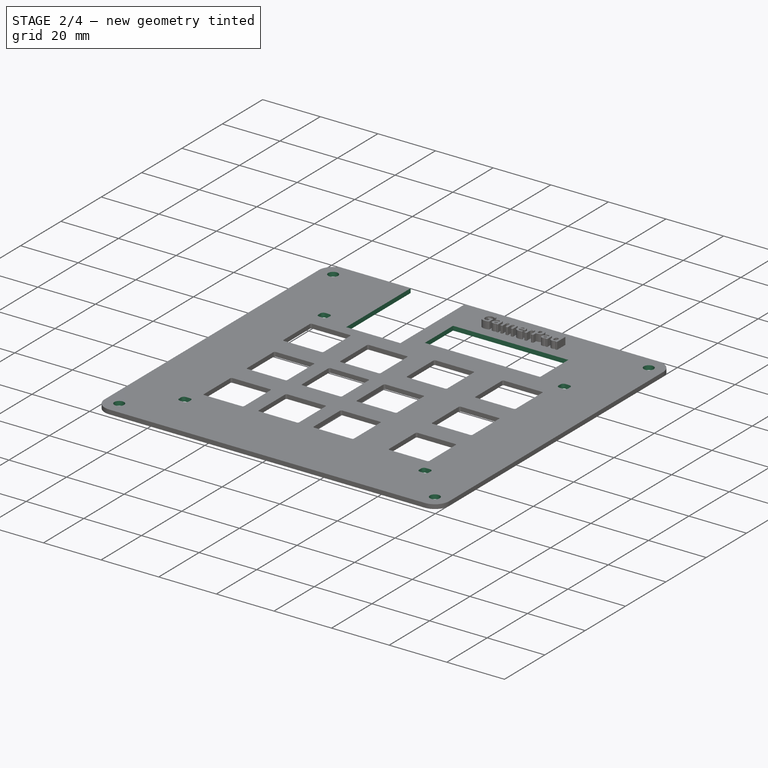
[diagram: stage 2 of 4 — iso view after this stage's code; geometry added in this stage tinted green]
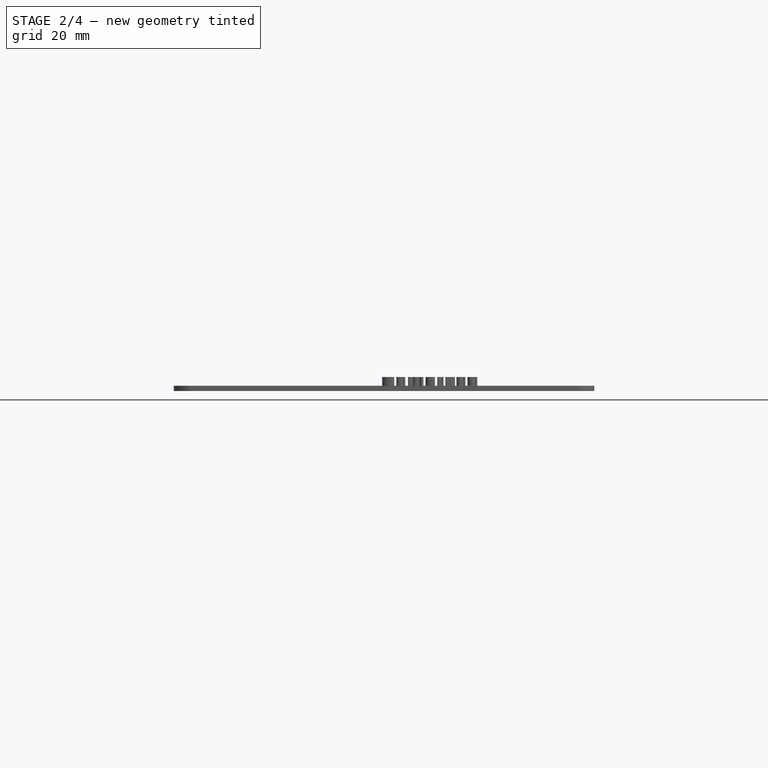
[diagram: stage 2 of 4 — front view after this stage's code; geometry added in this stage tinted green]
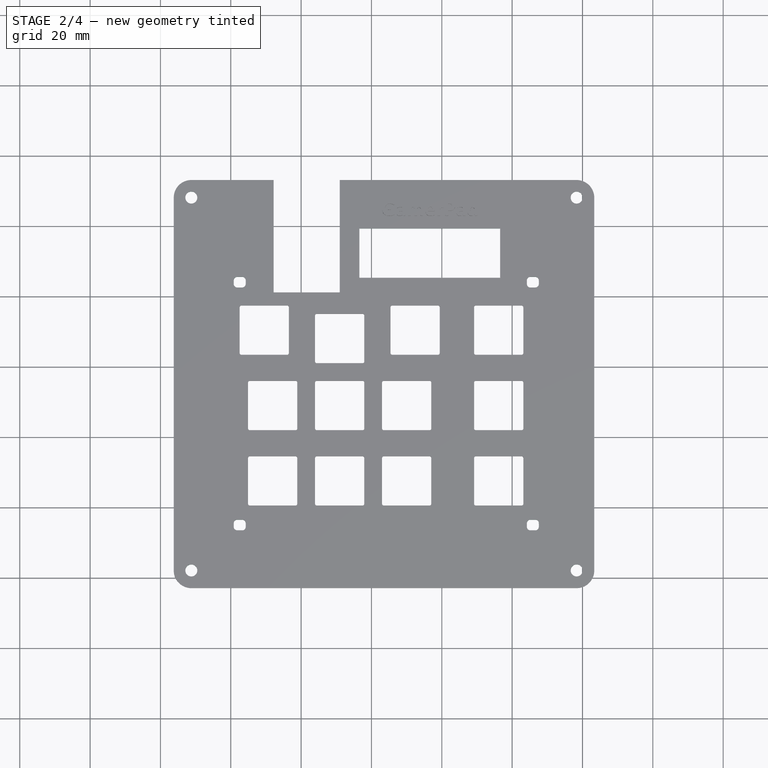
[diagram: stage 2 of 4 — top view after this stage's code; geometry added in this stage tinted green]
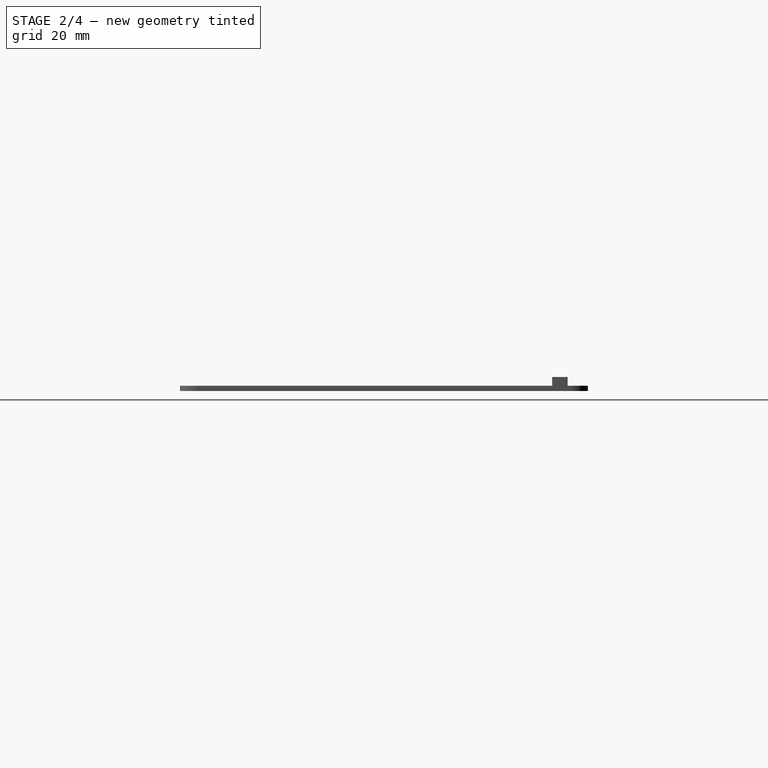
[diagram: stage 2 of 4 — right view after this stage's code; geometry added in this stage tinted green]
FEATURE [Sketcher::SketchObject] Sketch006
  ArcFitTolerance = 1e-06
  AttachmentSupport = -> [XY_Plane043]
  ExternalGeometry = -> [Sketch005]
  FullyConstrained = true
  MakeInternals = false
  MapMode = 5
  sketch-geometry (48):
    g0: LineSegment StartX=36.575 StartY=19.375 StartZ=0 EndX=36.575 EndY=5.375 EndZ=0
    g1: LineSegment StartX=36.575 StartY=5.375 StartZ=0 EndX=76.575 EndY=5.375 EndZ=0
    g2: LineSegment StartX=76.575 StartY=5.375 StartZ=0 EndX=76.575 EndY=19.375 EndZ=0
    g3: LineSegment StartX=76.575 StartY=19.375 StartZ=0 EndX=36.575 EndY=19.375 EndZ=0
    g4: LineSegment StartX=12.195 StartY=33.215 StartZ=0 EndX=12.195 EndY=1.215 EndZ=0
    g5: LineSegment StartX=12.195 StartY=1.215 StartZ=0 EndX=30.995 EndY=1.215 EndZ=0
    g6: LineSegment StartX=30.995 StartY=1.215 StartZ=0 EndX=30.995 EndY=33.215 EndZ=0
    g7: LineSegment StartX=30.995 StartY=33.215 StartZ=0 EndX=12.195 EndY=33.215 EndZ=0
    g8: LineSegment StartX=1.845 StartY=2.615 StartZ=0 EndX=3.245 EndY=2.615 EndZ=0
    g9: LineSegment StartX=4.245 StartY=3.615 StartZ=0 EndX=4.245 EndY=4.615 EndZ=0
    g10: LineSegment StartX=3.245 StartY=5.615 StartZ=0 EndX=1.845 EndY=5.615 EndZ=0
    g11: LineSegment StartX=0.845 StartY=4.615 StartZ=0 EndX=0.845 EndY=3.615 EndZ=0
    g12: ArcOfCircle CenterX=1.845 CenterY=3.615 CenterZ=0 NormalX=0 NormalY=0 NormalZ=1 AngleXU=0 Radius=1 StartAngle=3.14159 EndAngle=4.71239
    g13: ArcOfCircle CenterX=3.245 CenterY=3.615 CenterZ=0 NormalX=0 NormalY=0 NormalZ=1 AngleXU=0 Radius=1 StartAngle=4.71239 EndAngle=6.28319
    g14: ArcOfCircle CenterX=3.245 CenterY=4.615 CenterZ=0 NormalX=0 NormalY=0 NormalZ=1 AngleXU=0 Radius=1 StartAngle=-4.4e-15 EndAngle=1.5708
    g15: ArcOfCircle CenterX=1.845 CenterY=4.615 CenterZ=0 NormalX=0 NormalY=0 NormalZ=1 AngleXU=0 Radius=1 StartAngle=1.5708 EndAngle=3.14159
    g16: GeomPoint [constr] X=4.245 Y=5.615 Z=0
    g17: GeomPoint [constr] X=2.545 Y=4.115 Z=0
    g18: LineSegment StartX=85.185 StartY=2.615 StartZ=0 EndX=86.585 EndY=2.615 EndZ=0
    g19: LineSegment StartX=87.585 StartY=3.615 StartZ=0 EndX=87.585 EndY=4.615 EndZ=0
    g20: LineSegment StartX=86.585 StartY=5.615 StartZ=0 EndX=85.185 EndY=5.615 EndZ=0
    g21: LineSegment StartX=84.185 StartY=4.615 StartZ=0 EndX=84.185 EndY=3.615 EndZ=0
    g22: ArcOfCircle CenterX=85.185 CenterY=3.615 CenterZ=0 NormalX=0 NormalY=0 NormalZ=1 AngleXU=0 Radius=1 StartAngle=3.14159 EndAngle=4.71239
    g23: ArcOfCircle CenterX=86.585 CenterY=3.615 CenterZ=0 NormalX=0 NormalY=0 NormalZ=1 AngleXU=0 Radius=1 StartAngle=4.71239 EndAngle=6.28319
    g24: ArcOfCircle CenterX=86.585 CenterY=4.615 CenterZ=0 NormalX=0 NormalY=0 NormalZ=1 AngleXU=0 Radius=1 StartAngle=-4.4e-15 EndAngle=1.5708
    g25: ArcOfCircle CenterX=85.185 CenterY=4.615 CenterZ=0 NormalX=0 NormalY=0 NormalZ=1 AngleXU=0 Radius=1 StartAngle=1.5708 EndAngle=3.14159
    g26: GeomPoint [constr] X=87.585 Y=5.615 Z=0
    g27: GeomPoint [constr] X=85.885 Y=4.115 Z=0
    g28: LineSegment StartX=85.185 StartY=-66.445 StartZ=0 EndX=86.585 EndY=-66.445 EndZ=0
    g29: LineSegment StartX=87.585 StartY=-65.445 StartZ=0 EndX=87.585 EndY=-64.445 EndZ=0
    g30: LineSegment StartX=86.585 StartY=-63.445 StartZ=0 EndX=85.185 EndY=-63.445 EndZ=0
    g31: LineSegment StartX=84.185 StartY=-64.445 StartZ=0 EndX=84.185 EndY=-65.445 EndZ=0
    g32: ArcOfCircle CenterX=85.185 CenterY=-65.445 CenterZ=0 NormalX=0 NormalY=0 NormalZ=1 AngleXU=0 Radius=1 StartAngle=3.14159 EndAngle=4.71239
    g33: ArcOfCircle CenterX=86.585 CenterY=-65.445 CenterZ=0 NormalX=0 NormalY=0 NormalZ=1 AngleXU=0 Radius=1 StartAngle=4.71239 EndAngle=6.28319
    g34: ArcOfCircle CenterX=86.585 CenterY=-64.445 CenterZ=0 NormalX=0 NormalY=0 NormalZ=1 AngleXU=0 Radius=1 StartAngle=-2.7e-15 EndAngle=1.5708
    g35: ArcOfCircle CenterX=85.185 CenterY=-64.445 CenterZ=0 NormalX=0 NormalY=0 NormalZ=1 AngleXU=0 Radius=1 StartAngle=1.5708 EndAngle=3.14159
    g36: GeomPoint [constr] X=87.585 Y=-63.445 Z=0
    g37: GeomPoint [constr] X=85.885 Y=-64.945 Z=0
    g38: LineSegment StartX=1.845 StartY=-66.445 StartZ=0 EndX=3.245 EndY=-66.445 EndZ=0
    g39: LineSegment StartX=4.245 StartY=-65.445 StartZ=0 EndX=4.245 EndY=-64.445 EndZ=0
    g40: LineSegment StartX=3.245 StartY=-63.445 StartZ=0 EndX=1.845 EndY=-63.445 EndZ=0
    g41: LineSegment StartX=0.845 StartY=-64.445 StartZ=0 EndX=0.845 EndY=-65.445 EndZ=0
    g42: ArcOfCircle CenterX=1.845 CenterY=-65.445 CenterZ=0 NormalX=0 NormalY=0 NormalZ=1 AngleXU=0 Radius=1 StartAngle=3.14159 EndAngle=4.71239
    g43: ArcOfCircle CenterX=3.245 CenterY=-65.445 CenterZ=0 NormalX=0 NormalY=0 NormalZ=1 AngleXU=0 Radius=1 StartAngle=4.71239 EndAngle=6.28319
    g44: ArcOfCircle CenterX=3.245 CenterY=-64.445 CenterZ=0 NormalX=0 NormalY=0 NormalZ=1 AngleXU=0 Radius=1 StartAngle=-2.7e-15 EndAngle=1.5708
    g45: ArcOfCircle CenterX=1.845 CenterY=-64.445 CenterZ=0 NormalX=0 NormalY=0 NormalZ=1 AngleXU=0 Radius=1 StartAngle=1.5708 EndAngle=3.14159
    g46: GeomPoint [constr] X=4.245 Y=-63.445 Z=0
    g47: GeomPoint [constr] X=2.545 Y=-64.945 Z=0
  constraints (116):
    c: Coincident(g0,g1)
    c: Coincident(g1,g2)
    c: Coincident(g2,g3)
    c: Coincident(g3,g0)
    c: Vertical(g0)
    c: Vertical(g2)
    c: Horizontal(g1)
    c: Horizontal(g3)
    c: Distance(g0,g2) = 40
    c: Distance(g1,g3) = 14
    c: Distance(g-3,g3) = 13.79
    c: Distance(g-4,g2) = 26.77
    c: Coincident(g4,g5)
    c: Coincident(g5,g6)
    c: Coincident(g6,g7)
    c: Coincident(g7,g4)
    c: Vertical(g4)
    c: Vertical(g6)
    c: Horizontal(g5)
    c: Horizontal(g7)
    c: Distance(g4,g6) = 18.8
    c: Distance(g5,g7) = 32
    c: Distance(g-3,g5) = 31.95
    c: Distance(g-5,g4) = 28.41
    c: Tangent(g8,g12) = -1.5708
    c: Tangent(g8,g13) = -1.5708
    c: Tangent(g9,g13) = -1.5708
    c: Tangent(g9,g14) = -1.5708
    c: Tangent(g10,g14) = -1.5708
    c: Tangent(g10,g15) = -1.5708
    c: Tangent(g11,g15) = -1.5708
    c: Tangent(g11,g12) = -1.5708
    c: Horizontal(g8)
    c: Horizontal(g10)
    c: Vertical(g9)
    c: Vertical(g11)
    c: Equal(g12,g13)
    c: Equal(g13,g14)
    c: Equal(g14,g15)
    c: Symmetric(g10,g8,g17)
    c: PointOnObject(g16,g9)
    c: PointOnObject(g16,g10)
    c: Distance(g9,g11) = 3.4
    c: Distance(g8,g10) = 3
    c: Radius(g13) = 1
    c: Distance(g17,g-5) = 18.76
    c: Distance(g17,g-3) = 29.05
    c: Tangent(g18,g22) = -1.5708
    c: Tangent(g18,g23) = -1.5708
    c: Tangent(g19,g23) = -1.5708
    c: Tangent(g19,g24) = -1.5708
    c: Tangent(g20,g24) = -1.5708
    c: Tangent(g20,g25) = -1.5708
    c: Tangent(g21,g25) = -1.5708
    c: Tangent(g21,g22) = -1.5708
    c: Horizontal(g18)
    c: Horizontal(g20)
    c: Vertical(g19)
    c: Vertical(g21)
    c: Equal(g22,g23)
    c: Equal(g23,g24)
    c: Equal(g24,g25)
    c: Symmetric(g20,g18,g27)
    c: PointOnObject(g26,g19)
    c: PointOnObject(g26,g20)
    c: Distance(g19,g21) = 3.4
    c: Distance(g18,g20) = 3
    c: Radius(g23) = 1
    c: Distance(g27,g-3) = 29.05
    c: Distance(g27,g-4) = 17.46
    c: Tangent(g28,g32) = -1.5708
    c: Tangent(g28,g33) = -1.5708
    c: Tangent(g29,g33) = -1.5708
    c: Tangent(g29,g34) = -1.5708
    c: Tangent(g30,g34) = -1.5708
    c: Tangent(g30,g35) = -1.5708
    c: Tangent(g31,g35) = -1.5708
    c: Tangent(g31,g32) = -1.5708
    c: Horizontal(g28)
    c: Horizontal(g30)
    c: Vertical(g29)
    c: Vertical(g31)
    c: Equal(g32,g33)
    c: Equal(g33,g34)
    c: Equal(g34,g35)
    c: Symmetric(g30,g28,g37)
    c: PointOnObject(g36,g29)
    c: PointOnObject(g36,g30)
    c: Distance(g29,g31) = 3.4
    c: Distance(g28,g30) = 3
    c: Radius(g33) = 1
    c: Distance(g37,g-6) = 17.92
    c: Distance(g37,g-4) = 17.46
    c: Tangent(g38,g42) = -1.5708
    c: Tangent(g38,g43) = -1.5708
    c: Tangent(g39,g43) = -1.5708
    c: Tangent(g39,g44) = -1.5708
    c: Tangent(g40,g44) = -1.5708
    c: Tangent(g40,g45) = -1.5708
    c: Tangent(g41,g45) = -1.5708
    c: Tangent(g41,g42) = -1.5708
    c: Horizontal(g38)
    c: Horizontal(g40)
    c: Vertical(g39)
    c: Vertical(g41)
    c: Equal(g42,g43)
    c: Equal(g43,g44)
    c: Equal(g44,g45)
    c: Symmetric(g40,g38,g47)
    c: PointOnObject(g46,g39)
    c: PointOnObject(g46,g40)
    c: Distance(g39,g41) = 3.4
    c: Distance(g38,g40) = 3
    c: Radius(g43) = 1
    c: Distance(g47,g-5) = 18.76
    c: Distance(g47,g-6) = 17.92
FEATURE [PartDesign::Pocket] Pocket004
  BaseFeature = -> Pocket003
  Direction = (0,0,-1)
  Length = 0
  Length2 = 5
  Profile = -> Sketch006
  ReferenceAxis = -> Sketch006 [N_Axis]
  Refine = true
  Suppressed = false
  Type = 3
  UpToFace = -> Pocket003 [Face5]
FEATURE [Sketcher::SketchObject] Sketch007
  ArcFitTolerance = 1e-06
  AttachmentSupport = -> [XY_Plane043]
  ExternalGeometry = -> [Sketch005]
  FullyConstrained = true
  MakeInternals = false
  MapMode = 5
  sketch-geometry (4):
    g0: Circle CenterX=-11.215 CenterY=28.165 CenterZ=0 NormalX=0 NormalY=0 NormalZ=1 AngleXU=0 Radius=1.7
    g1: Circle CenterX=98.345 CenterY=28.165 CenterZ=0 NormalX=0 NormalY=0 NormalZ=1 AngleXU=0 Radius=1.7
    g2: Circle CenterX=-11.215 CenterY=-77.865 CenterZ=0 NormalX=0 NormalY=0 NormalZ=1 AngleXU=0 Radius=1.7
    g3: Circle CenterX=98.345 CenterY=-77.865 CenterZ=0 NormalX=0 NormalY=0 NormalZ=1 AngleXU=0 Radius=1.7
  constraints (12):
    c: Diameter(g0) = 3.4
    c: Distance(g0,g-3) = 5
    c: Distance(g0,g-4) = 5
    c: Diameter(g1) = 3.4
    c: Distance(g1,g-3) = 5
    c: Distance(g1,g-5) = 5
    c: Diameter(g2) = 3.4
    c: Distance(g2,g-6) = 5
    c: Distance(g2,g-4) = 5
    c: Diameter(g3) = 3.4
    c: Distance(g3,g-6) = 5
    c: Distance(g3,g-5) = 5
FEATURE [PartDesign::Body] Body  label="Body004"
  AllowCompound = false
  Group = -> [Sketch004,Sketch005,Pad001,Pocket003,Sketch006,Pocket004,Sketch007]
  Origin = -> Origin043
  Tip = -> Pocket004
FEATURE [Part::Extrusion] Extrude
  Base = -> Sketch007
  Dir = (0,0,1)
  DirMode = 2
  FaceMakerClass = Part::FaceMakerBullseye
  FaceMakerMode = 3
  LengthFwd = 10
  LengthRev = 0
  Solid = true
  Symmetric = false
FEATURE [Part::Cut] Cut
  Base = -> Body
  Refine = true
  Tool = -> Extrude
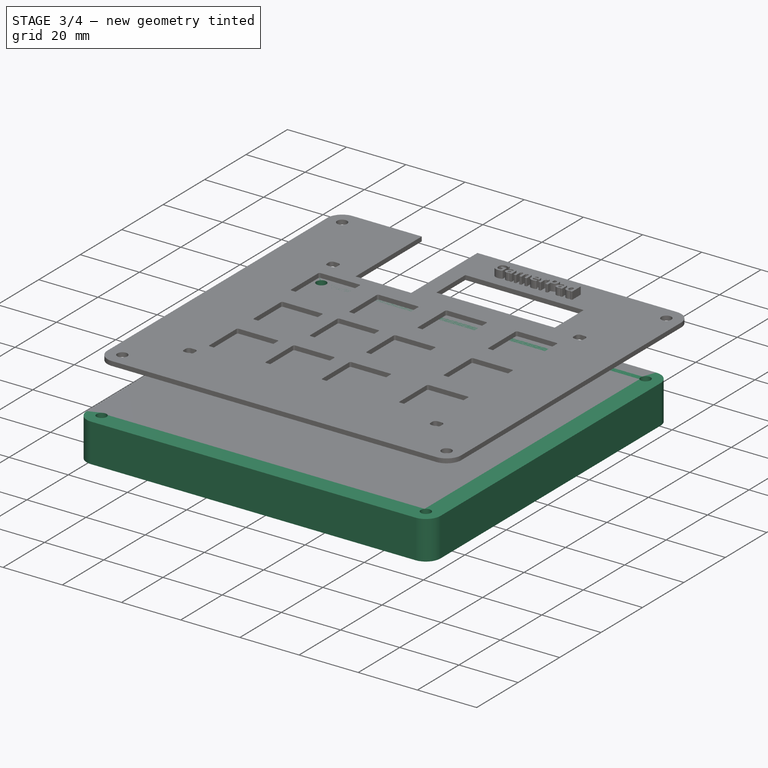
[diagram: stage 3 of 4 — iso view after this stage's code; geometry added in this stage tinted green]
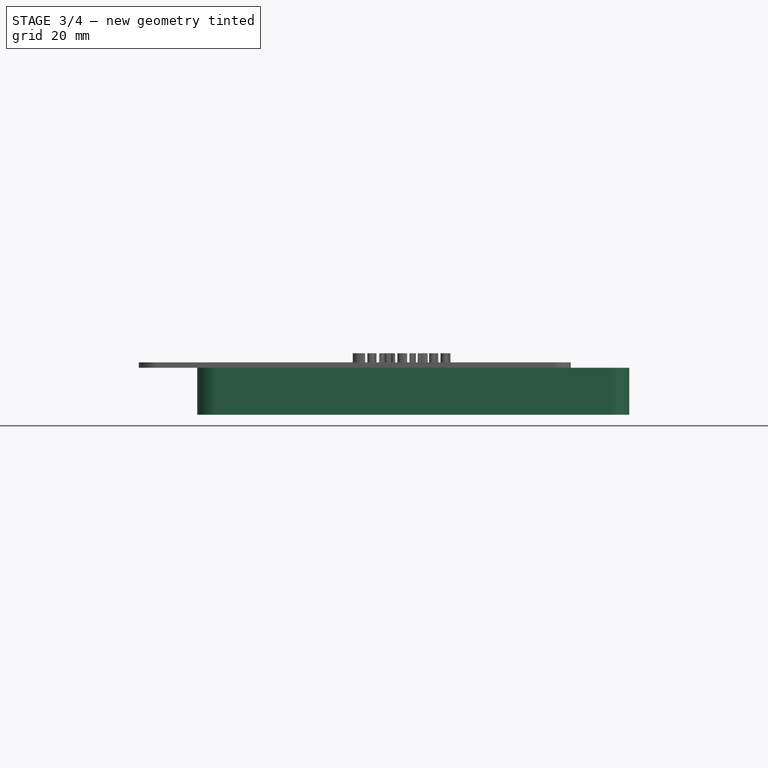
[diagram: stage 3 of 4 — front view after this stage's code; geometry added in this stage tinted green]
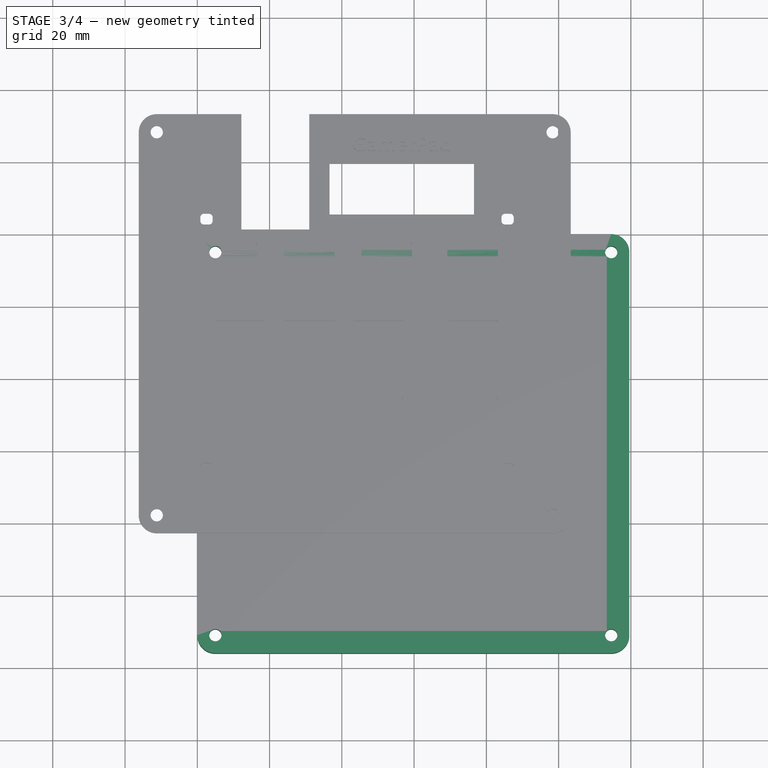
[diagram: stage 3 of 4 — top view after this stage's code; geometry added in this stage tinted green]
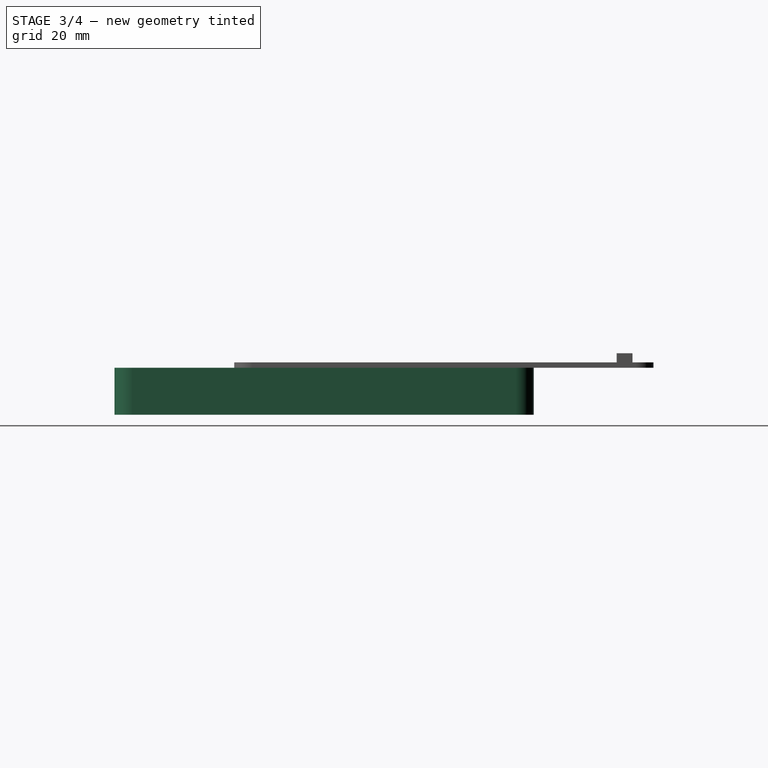
[diagram: stage 3 of 4 — right view after this stage's code; geometry added in this stage tinted green]
FEATURE [App::Part] gamerpad_1  label="PCB"
  Group = -> [MX_PCB,MX_1_00u_CAD,MX_PCB001,MX_1_00u_CAD001,MX_PCB002,MX_1_00u_CAD002,MX_PCB003,MX_1_00u_CAD003,Seeed_Studio_XIAO_RP2040_v26,MX_PCB004,MX_1_00u_CAD004,OLED_128x32,R_Axial_DIN0204_L3_6mm_D1_6mm_P7_62mm_Horizontal,MX_PCB005,MX_1_00u_CAD005,MX_PCB006,MX_1_00u_CAD006,MX_PCB007,MX_1_00u_CAD007,MX_PCB008,MX_1_00u_CAD008,R_Axial_DIN0204_L3_6mm_D1_6mm_P7_62mm_Horizontal001,MX_PCB009,MX_1_00u_CAD009,+5 more]
  Origin = -> Origin071
  Placement = pos=(43.58,-24.89,-5.1) rot=(0,0,1;0rad)
FEATURE [Sketcher::SketchObject] Sketch
  ArcFitTolerance = 1e-06
  FullyConstrained = true
  MakeInternals = false
  sketch-geometry (14):
    g0: LineSegment StartX=6.67e-13 StartY=-5 StartZ=0 EndX=6.67e-13 EndY=-111.03 EndZ=0
    g1: LineSegment StartX=5 StartY=-116.03 StartZ=0 EndX=114.56 EndY=-116.03 EndZ=0
    g2: LineSegment StartX=119.56 StartY=-111.03 StartZ=0 EndX=119.56 EndY=-5 EndZ=0
    g3: LineSegment StartX=114.56 StartY=-2.061e-13 StartZ=0 EndX=5 EndY=-2.061e-13 EndZ=0
    g4: ArcOfCircle CenterX=5 CenterY=-5 CenterZ=0 NormalX=0 NormalY=0 NormalZ=1 AngleXU=0 Radius=5 StartAngle=1.5708 EndAngle=3.14159
    g5: ArcOfCircle CenterX=5 CenterY=-111.03 CenterZ=0 NormalX=0 NormalY=0 NormalZ=1 AngleXU=0 Radius=5 StartAngle=3.14159 EndAngle=4.71239
    g6: ArcOfCircle CenterX=114.56 CenterY=-111.03 CenterZ=0 NormalX=0 NormalY=0 NormalZ=1 AngleXU=0 Radius=5 StartAngle=4.71239 EndAngle=6.28319
    g7: ArcOfCircle CenterX=114.56 CenterY=-5 CenterZ=0 NormalX=0 NormalY=0 NormalZ=1 AngleXU=0 Radius=5 StartAngle=-3.91e-14 EndAngle=1.5708
    g8: GeomPoint [constr] X=0 Y=0 Z=0
    g9: GeomPoint [constr] X=119.56 Y=-116.03 Z=0
    g10: Circle CenterX=5 CenterY=-5 CenterZ=0 NormalX=0 NormalY=0 NormalZ=1 AngleXU=0 Radius=1.7
    g11: Circle CenterX=114.56 CenterY=-5 CenterZ=0 NormalX=0 NormalY=0 NormalZ=1 AngleXU=0 Radius=1.7
    g12: Circle CenterX=114.56 CenterY=-111.03 CenterZ=0 NormalX=0 NormalY=0 NormalZ=1 AngleXU=0 Radius=1.7
    g13: Circle CenterX=5 CenterY=-111.03 CenterZ=0 NormalX=0 NormalY=0 NormalZ=1 AngleXU=0 Radius=1.7
  constraints (35):
    c: Tangent(g0,g4) = -1.5708
    c: Tangent(g0,g5) = -1.5708
    c: Tangent(g1,g5) = -1.5708
    c: Tangent(g1,g6) = -1.5708
    c: Tangent(g2,g6) = -1.5708
    c: Tangent(g2,g7) = -1.5708
    c: Tangent(g3,g7) = -1.5708
    c: Tangent(g3,g4) = -1.5708
    c: Vertical(g0)
    c: Vertical(g2)
    c: Horizontal(g1)
    c: Horizontal(g3)
    c: Equal(g4,g5)
    c: Equal(g5,g6)
    c: Equal(g6,g7)
    c: PointOnObject(g8,g0)
    c: PointOnObject(g8,g3)
    c: PointOnObject(g9,g1)
    c: PointOnObject(g9,g2)
    c: Distance(g0,g2) = 119.56
    c: Distance(g1,g3) = 116.03
    c: Radius(g5) = 5
    c: Diameter(g10) = 3.4
    c: Diameter(g11) = 3.4
    c: Diameter(g12) = 3.4
    c: Diameter(g13) = 3.4
    c: Distance(g13,g1) = 5
    c: Distance(g13,g0) = 5
    c: Distance(g12,g1) = 5
    c: Distance(g12,g2) = 5
    c: Distance(g11,g3) = 5
    c: Distance(g11,g2) = 5
    c: Distance(g10,g3) = 5
    c: Distance(g10,g0) = 5
    c: Coincident(g8,g-1)
FEATURE [PartDesign::Pad] Pad
  Direction = (0,0,1)
  Length = 13
  Length2 = 10
  Profile = -> Sketch
  ReferenceAxis = -> Sketch [N_Axis]
  Refine = true
  Reversed = true
  Suppressed = false
  Type = 0
FEATURE [Part::MultiFuse] Fusion  label="TopPart"
  Refine = true
  Shapes = -> [Extrude001,Cut]
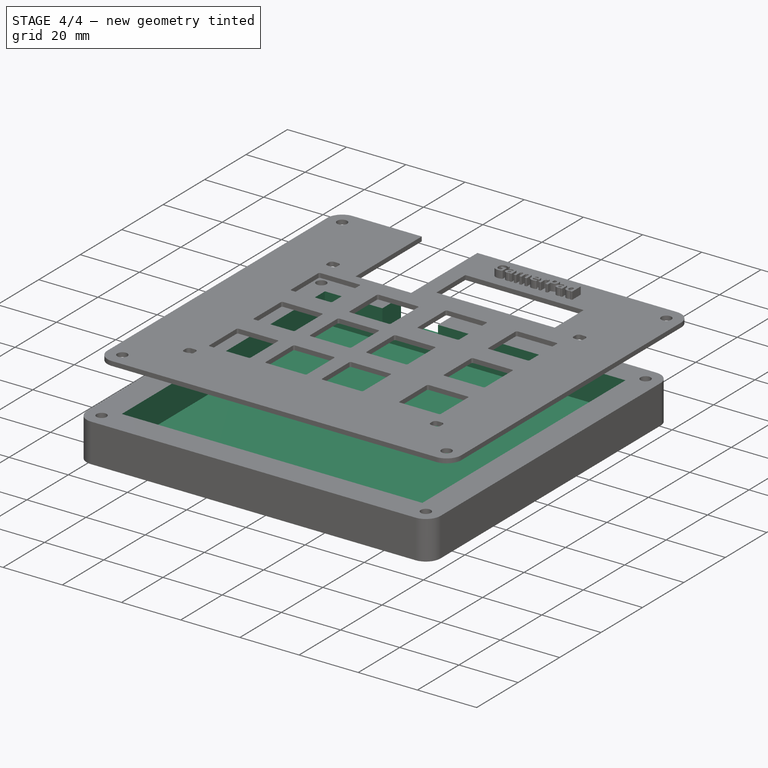
[diagram: stage 4 of 4 — iso view after this stage's code; geometry added in this stage tinted green]
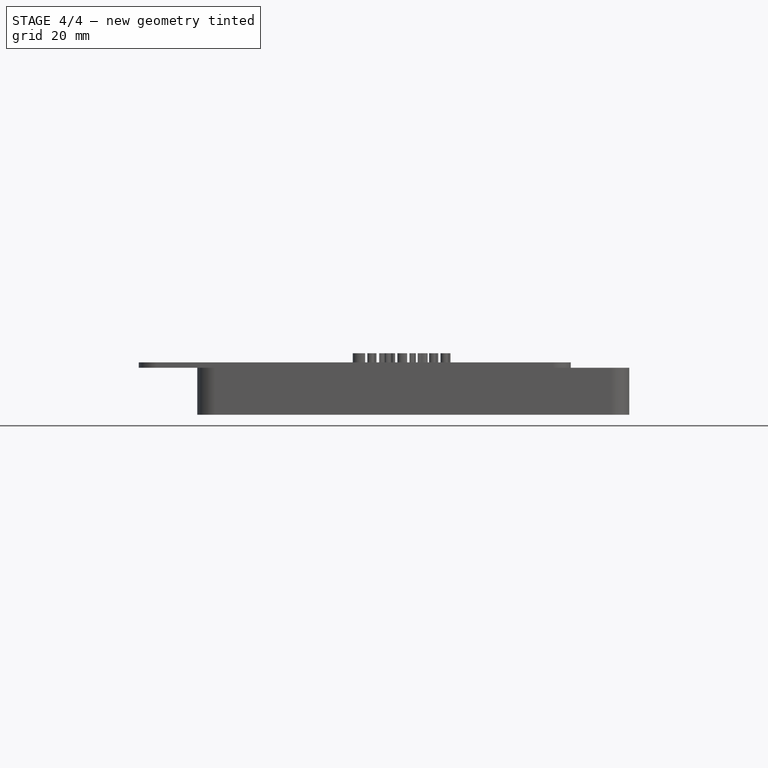
[diagram: stage 4 of 4 — front view after this stage's code; geometry added in this stage tinted green]
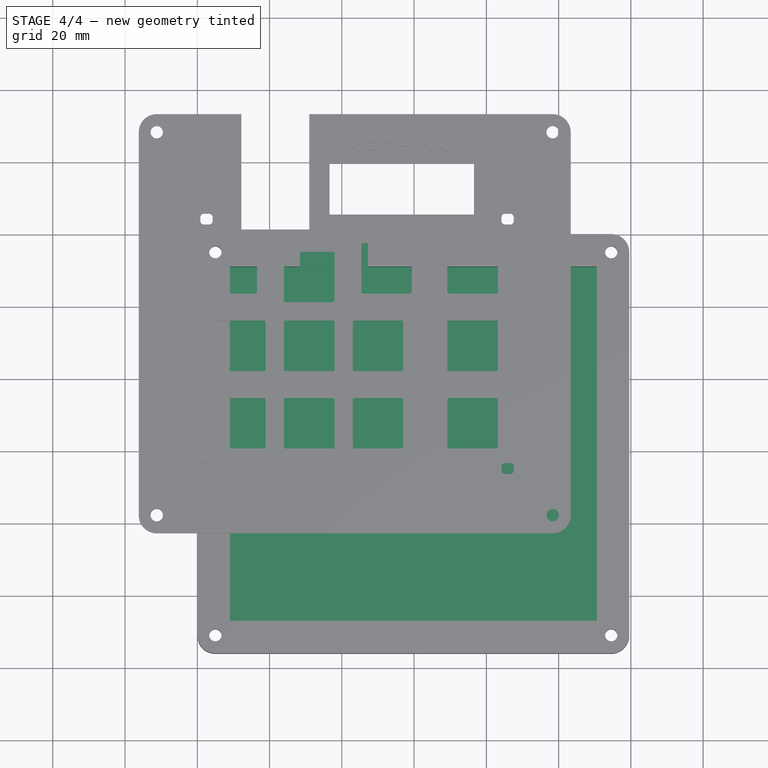
[diagram: stage 4 of 4 — top view after this stage's code; geometry added in this stage tinted green]
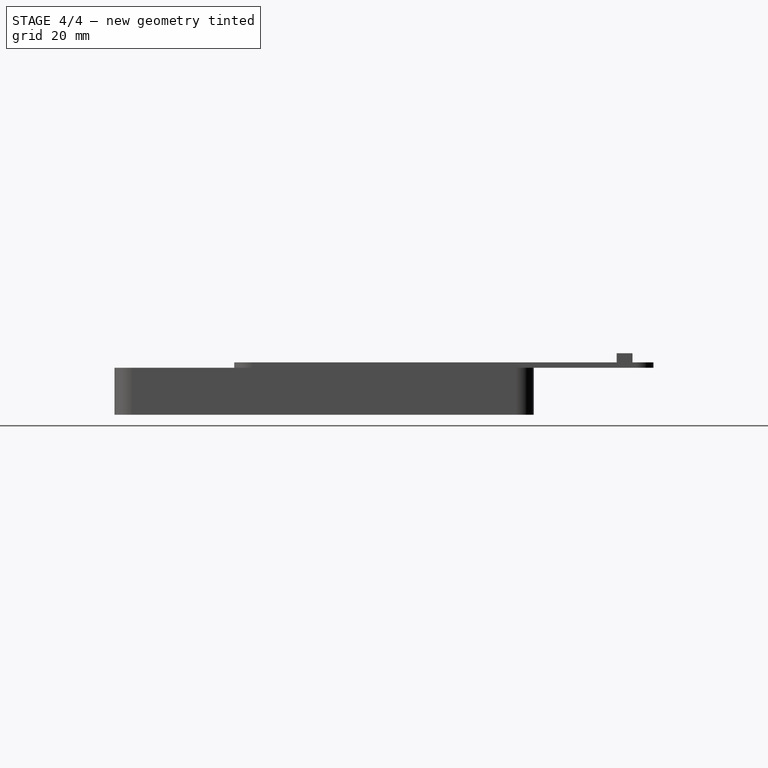
[diagram: stage 4 of 4 — right view after this stage's code; geometry added in this stage tinted green]
FEATURE [Sketcher::SketchObject] Sketch001
  ArcFitTolerance = 1e-06
  AttachmentSupport = -> [XY_Plane072]
  ExternalGeometry = -> [Pad]
  FullyConstrained = true
  MakeInternals = false
  MapMode = 5
  sketch-geometry (4):
    g0: LineSegment StartX=9 StartY=-9 StartZ=0 EndX=9 EndY=-107.03 EndZ=0
    g1: LineSegment StartX=9 StartY=-107.03 StartZ=0 EndX=110.56 EndY=-107.03 EndZ=0
    g2: LineSegment StartX=110.56 StartY=-107.03 StartZ=0 EndX=110.56 EndY=-9 EndZ=0
    g3: LineSegment StartX=110.56 StartY=-9 StartZ=0 EndX=9 EndY=-9 EndZ=0
  constraints (12):
    c: Coincident(g0,g1)
    c: Coincident(g1,g2)
    c: Coincident(g2,g3)
    c: Coincident(g3,g0)
    c: Vertical(g0)
    c: Vertical(g2)
    c: Horizontal(g1)
    c: Horizontal(g3)
    c: Distance(g-3,g3) = 9
    c: Distance(g-5,g2) = 9
    c: Distance(g-4,g0) = 9
    c: Distance(g-6,g1) = 9
FEATURE [PartDesign::Pocket] Pocket
  BaseFeature = -> Pad
  Direction = (0,0,-1)
  Length = 10
  Length2 = 5
  Profile = -> Sketch001
  ReferenceAxis = -> Sketch001 [N_Axis]
  Refine = true
  Suppressed = false
  Type = 0
FEATURE [Sketcher::SketchObject] Sketch002
  ArcFitTolerance = 1e-06
  AttachmentSupport = -> [Pocket]
  ExternalGeometry = -> [Pocket]
  FullyConstrained = true
  MakeInternals = false
  MapMode = 5
  Placement = pos=(0,0,-13) rot=(1,0,0;3.14159rad)
  sketch-geometry (4):
    g0: Circle CenterX=5 CenterY=111.03 CenterZ=0 NormalX=0 NormalY=0 NormalZ=1 AngleXU=0 Radius=3
    g1: Circle CenterX=114.56 CenterY=111.03 CenterZ=0 NormalX=0 NormalY=0 NormalZ=1 AngleXU=0 Radius=3
    g2: Circle CenterX=5 CenterY=5 CenterZ=0 NormalX=0 NormalY=0 NormalZ=1 AngleXU=0 Radius=3
    g3: Circle CenterX=114.56 CenterY=5 CenterZ=0 NormalX=0 NormalY=0 NormalZ=1 AngleXU=0 Radius=3
  constraints (8):
    c: Diameter(g0) = 6
    c: Coincident(g0,g-3)
    c: Diameter(g1) = 6
    c: Coincident(g1,g-4)
    c: Diameter(g2) = 6
    c: Coincident(g2,g-6)
    c: Diameter(g3) = 6
    c: Coincident(g3,g-5)
FEATURE [PartDesign::Pocket] Pocket001
  BaseFeature = -> Pocket
  Direction = (0,0,1)
  Length = 3.1
  Length2 = 5
  Profile = -> Sketch002
  ReferenceAxis = -> Sketch002 [N_Axis]
  Refine = true
  Suppressed = false
  Type = 0
FEATURE [Sketcher::SketchObject] Sketch003
  ArcFitTolerance = 1e-06
  AttachmentSupport = -> [XZ_Plane072]
  FullyConstrained = true
  MakeInternals = false
  MapMode = 5
  Placement = pos=(0,0,0) rot=(1,0,0;1.5708rad)
  sketch-geometry (4):
    g0: LineSegment StartX=47.21 StartY=0 StartZ=0 EndX=28.41 EndY=0 EndZ=0
    g1: LineSegment StartX=28.41 StartY=0 StartZ=0 EndX=28.41 EndY=-7.5 EndZ=0
    g2: LineSegment StartX=28.41 StartY=-7.5 StartZ=0 EndX=47.21 EndY=-7.5 EndZ=0
    g3: LineSegment StartX=47.21 StartY=-7.5 StartZ=0 EndX=47.21 EndY=0 EndZ=0
  constraints (12):
    c: Coincident(g0,g1)
    c: Coincident(g1,g2)
    c: Coincident(g2,g3)
    c: Coincident(g3,g0)
    c: Horizontal(g0)
    c: Horizontal(g2)
    c: Vertical(g1)
    c: Vertical(g3)
    c: Distance(g1,g3) = 18.8
    c: Distance(g0,g2) = 7.5
    c: PointOnObject(g0,g-1)
    c: Distance(g-2,g1) = 28.41
FEATURE [PartDesign::Pocket] Pocket002
  BaseFeature = -> Pocket001
  Direction = (0,1,-2e-16)
  Length = 11
  Length2 = 5
  Profile = -> Sketch003
  ReferenceAxis = -> Sketch003 [N_Axis]
  Refine = true
  Reversed = true
  Suppressed = false
  Type = 0
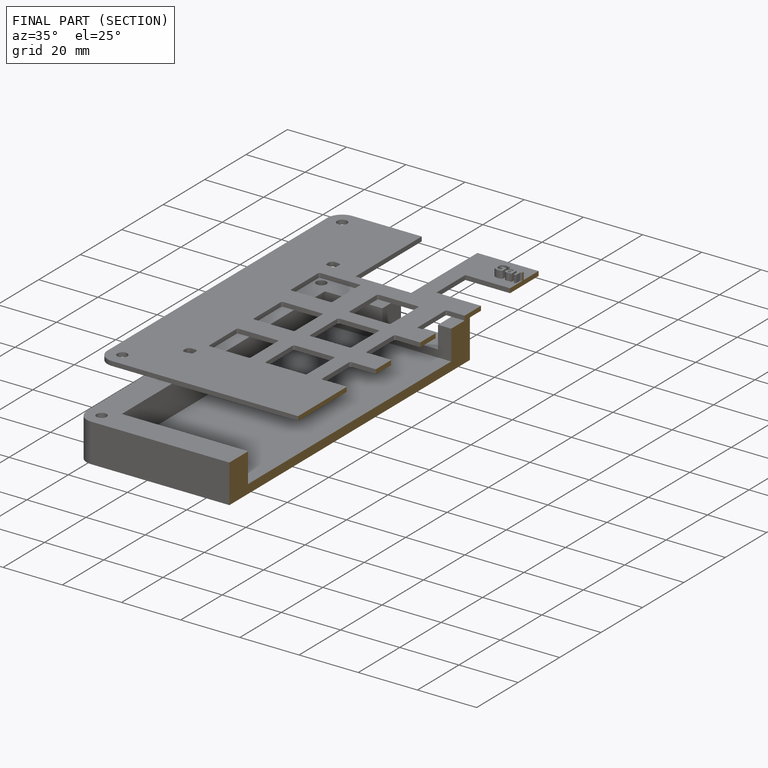
[diagram: finished part — half-section view (interior)]
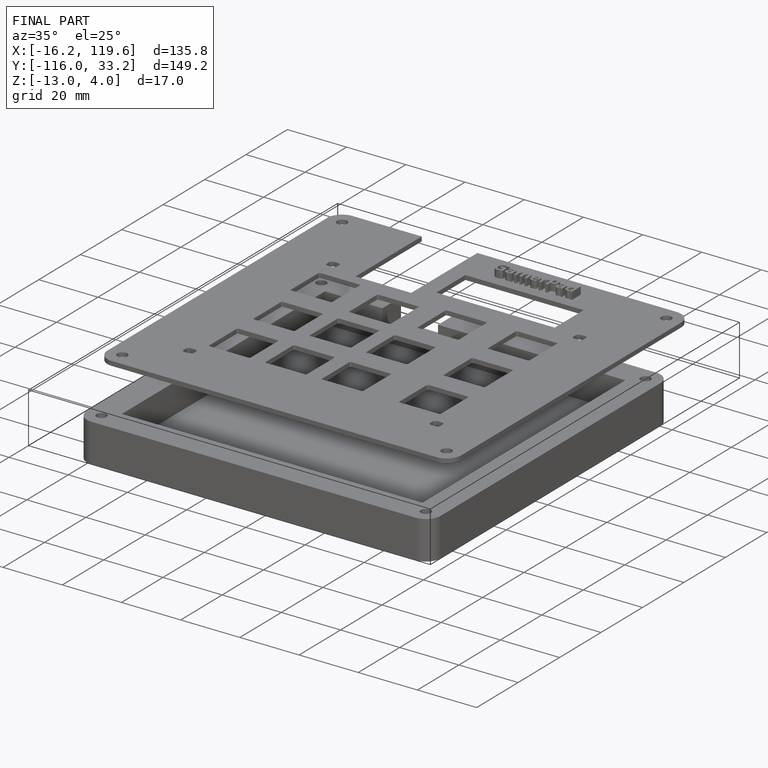
[diagram: finished part — iso view with bounding-box wireframe]
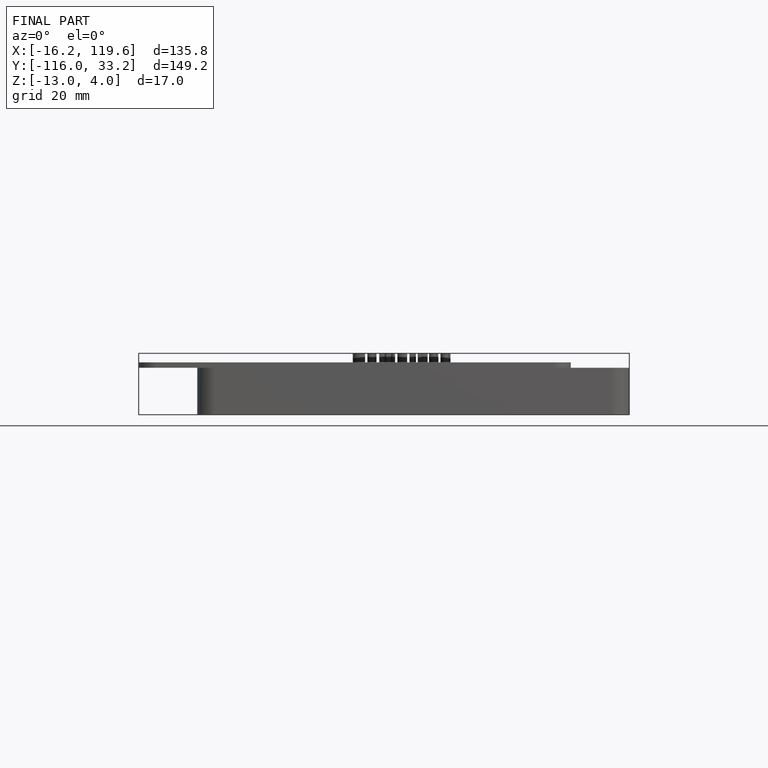
[diagram: finished part — front view with bounding-box wireframe]
